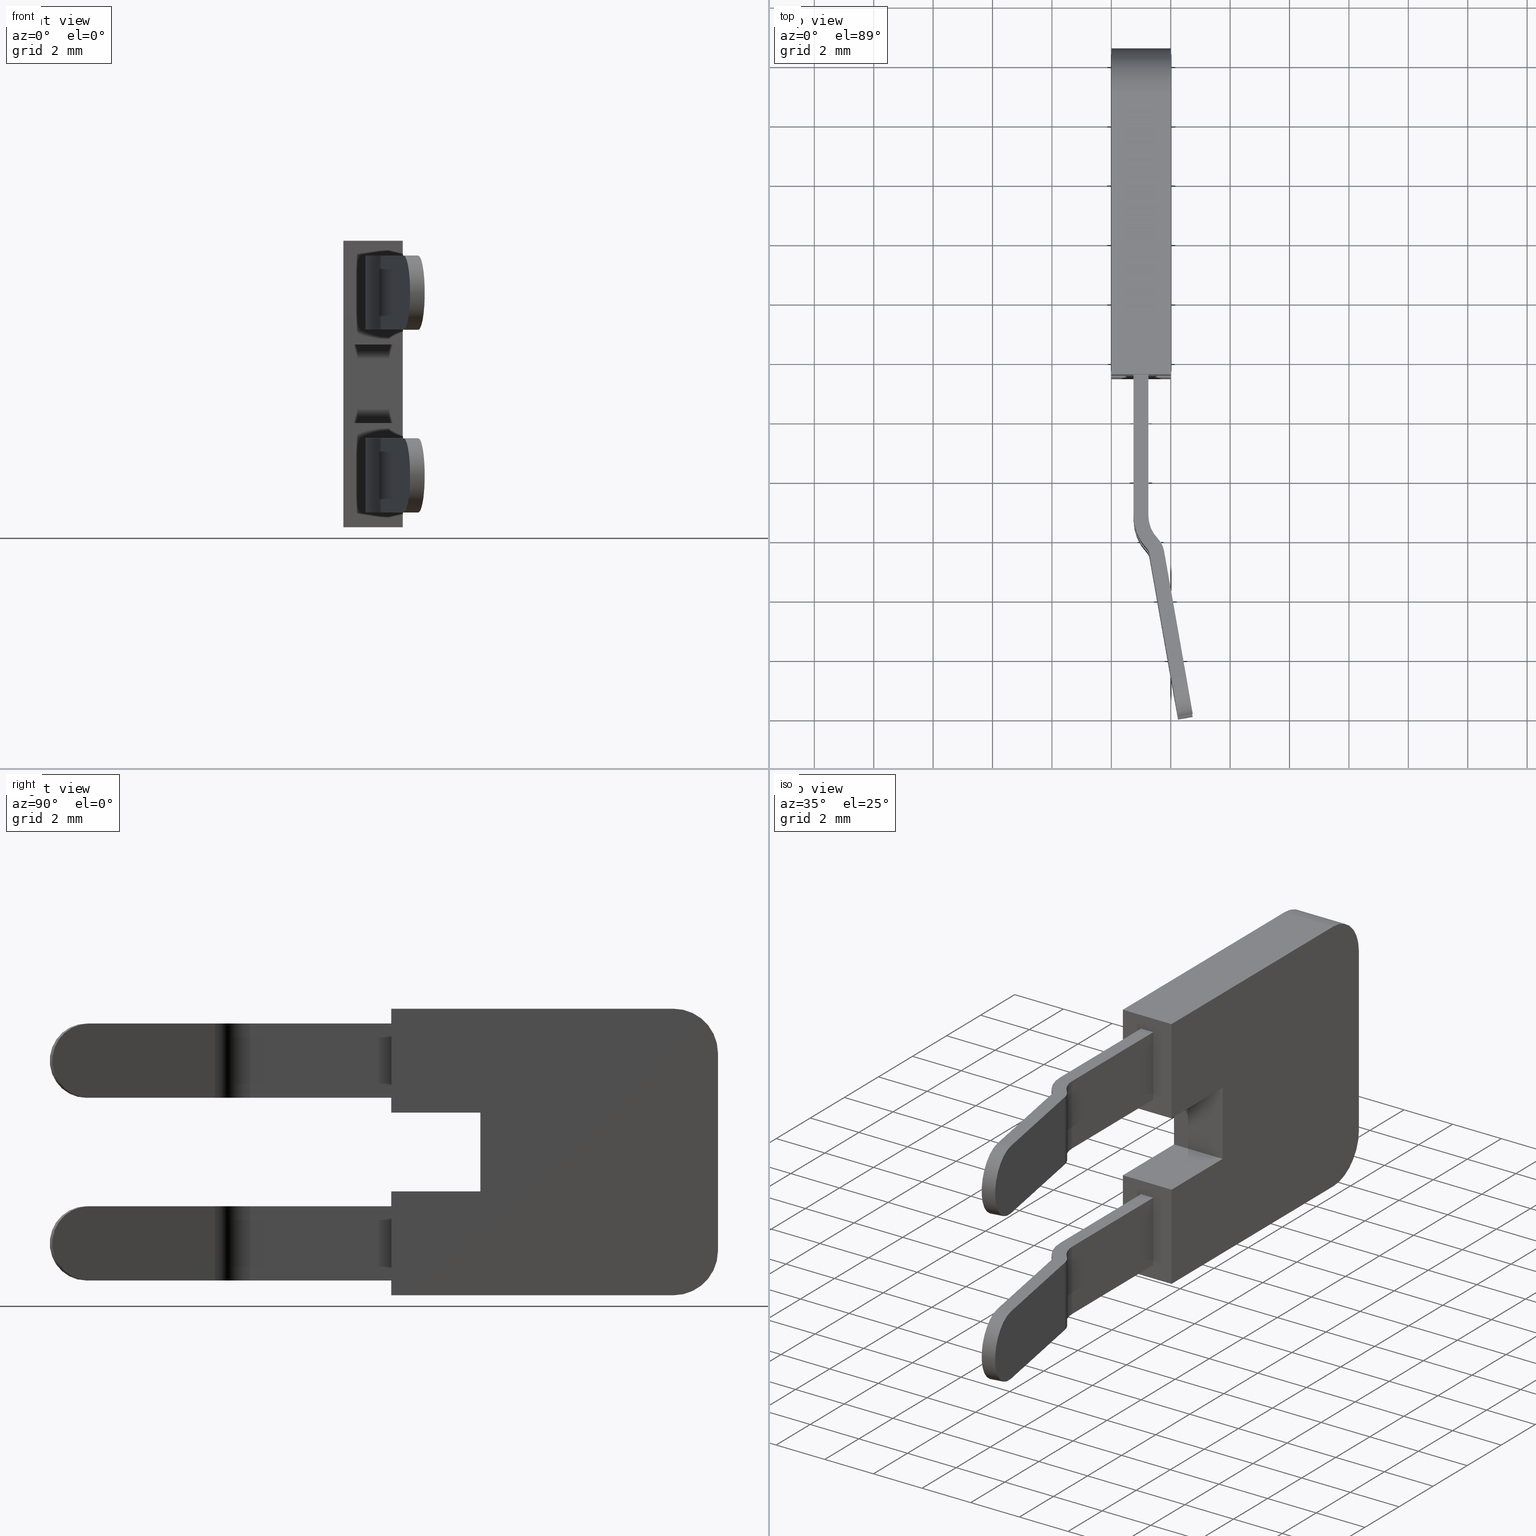
[diagram: canonical four-view strip — front | top / right | iso, engineering-drawing reading convention]
A machine part, canonical four-view strip (front | top / right | iso — engineering-drawing reading convention). The complete STEP part file that produces these views, byte-faithful:
ISO-10303-21;
HEADER;
FILE_DESCRIPTION(('Creo Elements/Direct Modeling STEP Export'),'2;1');
FILE_NAME(
'D:/temp/JobSpoolerServerData/JobServer Files/edad0318-56d8-4a79-a94b-a9
2465a45d54/work/output/model.stp','2018-02-09T11:10:31',(''),(''),
'Creo Elements/Direct Modeling STEP processor for AP214 (Solid Model)',
'Creo Elements/Direct Modeling 18.1I  14-Aug-2016 (C) Parametric Technol
ogy GmbH','');
FILE_SCHEMA(('AUTOMOTIVE_DESIGN { 1 0 10303 214 1 1 1 1 }'));
ENDSEC;
DATA;
#10=CARTESIAN_POINT('',(-23.1051720133759,-9.04580621180248,0.75));
#20=DIRECTION('',(1.,0.,0.));
#30=DIRECTION('',(0.,-1.,0.));
#40=AXIS2_PLACEMENT_3D('',#10,#20,#30);
#50=PLANE('',#40);
#60=CARTESIAN_POINT('',(-23.1051720133759,0.,0.75));
#70=DIRECTION('',(0.,1.,0.));
#80=VECTOR('',#70,1.);
#90=LINE('',#60,#80);
#100=CARTESIAN_POINT('',(-23.1051720133759,-9.04580621180248,0.75));
#110=VERTEX_POINT('',#100);
#120=CARTESIAN_POINT('',(-23.1051720133759,-6.04580621180248,0.75));
#130=VERTEX_POINT('',#120);
#140=EDGE_CURVE('',#110,#130,#90,.T.);
#150=ORIENTED_EDGE('',*,*,#140,.F.);
#160=CARTESIAN_POINT('',(-23.1051720133759,-6.04580621180248,0.75));
#170=DIRECTION('',(0.,0.,-1.));
#180=VECTOR('',#170,1.);
#190=LINE('',#160,#180);
#200=CARTESIAN_POINT('',(-23.1051720133759,-6.04580621180248,-1.25));
#210=VERTEX_POINT('',#200);
#220=EDGE_CURVE('',#130,#210,#190,.T.);
#230=ORIENTED_EDGE('',*,*,#220,.F.);
#240=CARTESIAN_POINT('',(-23.1051720133759,0.,-1.25));
#250=DIRECTION('',(0.,1.,0.));
#260=VECTOR('',#250,1.);
#270=LINE('',#240,#260);
#280=CARTESIAN_POINT('',(-23.1051720133759,-9.04580621180248,-1.25));
#290=VERTEX_POINT('',#280);
#300=EDGE_CURVE('',#290,#210,#270,.T.);
#310=ORIENTED_EDGE('',*,*,#300,.T.);
#320=CARTESIAN_POINT('',(-23.1051720133759,-9.04580621180248,0.75));
#330=DIRECTION('',(0.,0.,1.));
#340=VECTOR('',#330,1.);
#350=LINE('',#320,#340);
#360=EDGE_CURVE('',#290,#110,#350,.T.);
#370=ORIENTED_EDGE('',*,*,#360,.F.);
#380=EDGE_LOOP('',(#370,#310,#230,#150));
#390=FACE_OUTER_BOUND('',#380,.T.);
#400=ADVANCED_FACE('',(#390),#50,.T.);
#410=COLOUR_RGB('',0.560784339904785,0.588235318660736,0.600000023841858
);
#420=FILL_AREA_STYLE_COLOUR('',#410);
#430=FILL_AREA_STYLE('',(#420));
#440=SURFACE_STYLE_FILL_AREA(#430);
#450=SURFACE_SIDE_STYLE('',(#440));
#460=SURFACE_STYLE_USAGE(.BOTH.,#450);
#470=PRESENTATION_STYLE_ASSIGNMENT((#460));
#480=CARTESIAN_POINT('',(-25.1051720133759,0.454193788197522,0.75));
#490=DIRECTION('',(0.,0.,1.));
#500=DIRECTION('',(1.,0.,0.));
#510=AXIS2_PLACEMENT_3D('',#480,#490,#500);
#520=CYLINDRICAL_SURFACE('',#510,1.5);
#530=CARTESIAN_POINT('',(-25.1051720133759,0.454193788197522,0.75));
#540=DIRECTION('',(0.,0.,1.));
#550=DIRECTION('',(1.,0.,0.));
#560=AXIS2_PLACEMENT_3D('',#530,#540,#550);
#570=CIRCLE('',#560,1.5);
#580=CARTESIAN_POINT('',(-25.1051720133759,1.95419378819752,0.75));
#590=VERTEX_POINT('',#580);
#600=CARTESIAN_POINT('',(-26.6051720133759,0.454193788197522,0.75));
#610=VERTEX_POINT('',#600);
#620=EDGE_CURVE('',#590,#610,#570,.T.);
#630=ORIENTED_EDGE('',*,*,#620,.F.);
#640=CARTESIAN_POINT('',(-26.6051720133759,0.454193788197522,-1.250003))
;
#650=DIRECTION('',(0.,0.,1.));
#660=VECTOR('',#650,1.);
#670=LINE('',#640,#660);
#680=CARTESIAN_POINT('',(-26.6051720133759,0.454193788197522,-1.25));
#690=VERTEX_POINT('',#680);
#700=EDGE_CURVE('',#690,#610,#670,.T.);
#710=ORIENTED_EDGE('',*,*,#700,.T.);
#720=CARTESIAN_POINT('',(-25.1051720133759,0.454193788197522,-1.25));
#730=DIRECTION('',(0.,0.,1.));
#740=DIRECTION('',(1.,0.,0.));
#750=AXIS2_PLACEMENT_3D('',#720,#730,#740);
#760=CIRCLE('',#750,1.5);
#770=CARTESIAN_POINT('',(-25.1051720133759,1.95419378819752,-1.25));
#780=VERTEX_POINT('',#770);
#790=EDGE_CURVE('',#780,#690,#760,.T.);
#800=ORIENTED_EDGE('',*,*,#790,.T.);
#810=CARTESIAN_POINT('',(-25.1051720133759,1.95419378819752,-1.250003));
#820=DIRECTION('',(0.,0.,1.));
#830=VECTOR('',#820,1.);
#840=LINE('',#810,#830);
#850=EDGE_CURVE('',#780,#590,#840,.T.);
#860=ORIENTED_EDGE('',*,*,#850,.F.);
#870=EDGE_LOOP('',(#860,#800,#710,#630));
#880=FACE_OUTER_BOUND('',#870,.T.);
#890=ADVANCED_FACE('',(#880),#520,.T.);
#900=COLOUR_RGB('',0.560784339904785,0.588235318660736,0.600000023841858
);
#910=FILL_AREA_STYLE_COLOUR('',#900);
#920=FILL_AREA_STYLE('',(#910));
#930=SURFACE_STYLE_FILL_AREA(#920);
#940=SURFACE_SIDE_STYLE('',(#930));
#950=SURFACE_STYLE_USAGE(.BOTH.,#940);
#960=PRESENTATION_STYLE_ASSIGNMENT((#950));
#970=CARTESIAN_POINT('',(-20.4551720133759,-5.731938,0.75));
#980=DIRECTION('',(-1.,0.,0.));
#990=DIRECTION('',(0.,1.,0.));
#1000=AXIS2_PLACEMENT_3D('',#970,#980,#990);
#1010=PLANE('',#1000);
#1020=CARTESIAN_POINT('',(-20.4551720133759,0.,-1.25));
#1030=DIRECTION('',(0.,-1.,0.));
#1040=VECTOR('',#1030,1.);
#1050=LINE('',#1020,#1040);
#1060=CARTESIAN_POINT('',(-20.4551720133759,-6.04580621180248,-1.25));
#1070=VERTEX_POINT('',#1060);
#1080=CARTESIAN_POINT('',(-20.4551720133759,-9.04580621180248,-1.25));
#1090=VERTEX_POINT('',#1080);
#1100=EDGE_CURVE('',#1070,#1090,#1050,.T.);
#1110=ORIENTED_EDGE('',*,*,#1100,.T.);
#1120=CARTESIAN_POINT('',(-20.4551720133759,-6.04580621180248,0.75));
#1130=DIRECTION('',(0.,0.,-1.));
#1140=VECTOR('',#1130,1.);
#1150=LINE('',#1120,#1140);
#1160=CARTESIAN_POINT('',(-20.4551720133759,-6.04580621180248,0.75));
#1170=VERTEX_POINT('',#1160);
#1180=EDGE_CURVE('',#1170,#1070,#1150,.T.);
#1190=ORIENTED_EDGE('',*,*,#1180,.T.);
#1200=CARTESIAN_POINT('',(-20.4551720133759,0.,0.75));
#1210=DIRECTION('',(0.,-1.,0.));
#1220=VECTOR('',#1210,1.);
#1230=LINE('',#1200,#1220);
#1240=CARTESIAN_POINT('',(-20.4551720133759,-9.04580621180248,0.75));
#1250=VERTEX_POINT('',#1240);
#1260=EDGE_CURVE('',#1170,#1250,#1230,.T.);
#1270=ORIENTED_EDGE('',*,*,#1260,.F.);
#1280=CARTESIAN_POINT('',(-20.4551720133759,-9.04580621180248,0.75));
#1290=DIRECTION('',(0.,0.,1.));
#1300=VECTOR('',#1290,1.);
#1310=LINE('',#1280,#1300);
#1320=EDGE_CURVE('',#1090,#1250,#1310,.T.);
#1330=ORIENTED_EDGE('',*,*,#1320,.T.);
#1340=EDGE_LOOP('',(#1330,#1270,#1190,#1110));
#1350=FACE_OUTER_BOUND('',#1340,.T.);
#1360=ADVANCED_FACE('',(#1350),#1010,.T.);
#1370=COLOUR_RGB('',0.560784339904785,0.588235318660736,
0.600000023841858);
#1380=FILL_AREA_STYLE_COLOUR('',#1370);
#1390=FILL_AREA_STYLE('',(#1380));
#1400=SURFACE_STYLE_FILL_AREA(#1390);
#1410=SURFACE_SIDE_STYLE('',(#1400));
#1420=SURFACE_STYLE_USAGE(.BOTH.,#1410);
#1430=PRESENTATION_STYLE_ASSIGNMENT((#1420));
#1440=CARTESIAN_POINT('',(-17.706342,-5.636856,0.75));
#1450=DIRECTION('',(0.,0.,1.));
#1460=DIRECTION('',(1.,0.,0.));
#1470=AXIS2_PLACEMENT_3D('',#1440,#1450,#1460);
#1480=PLANE('',#1470);
#1490=CARTESIAN_POINT('',(-18.4551720133759,0.454193788197522,0.75));
#1500=DIRECTION('',(0.,0.,-1.));
#1510=DIRECTION('',(-1.,0.,0.));
#1520=AXIS2_PLACEMENT_3D('',#1490,#1500,#1510);
#1530=CIRCLE('',#1520,1.5);
#1540=CARTESIAN_POINT('',(-18.4551720133759,1.95419378819752,0.75));
#1550=VERTEX_POINT('',#1540);
#1560=CARTESIAN_POINT('',(-16.9551720133759,0.454193788197522,0.75));
#1570=VERTEX_POINT('',#1560);
#1580=EDGE_CURVE('',#1550,#1570,#1530,.T.);
#1590=ORIENTED_EDGE('',*,*,#1580,.F.);
#1600=CARTESIAN_POINT('',(-16.9551720133759,0.,0.75));
#1610=DIRECTION('',(0.,1.,0.));
#1620=VECTOR('',#1610,1.);
#1630=LINE('',#1600,#1620);
#1640=CARTESIAN_POINT('',(-16.9551720133759,-9.04580621180248,0.75));
#1650=VERTEX_POINT('',#1640);
#1660=EDGE_CURVE('',#1650,#1570,#1630,.T.);
#1670=ORIENTED_EDGE('',*,*,#1660,.T.);
#1680=CARTESIAN_POINT('',(0.,-9.04580621180248,0.75));
#1690=DIRECTION('',(1.,0.,0.));
#1700=VECTOR('',#1690,1.);
#1710=LINE('',#1680,#1700);
#1720=EDGE_CURVE('',#1250,#1650,#1710,.T.);
#1730=ORIENTED_EDGE('',*,*,#1720,.T.);
#1740=ORIENTED_EDGE('',*,*,#1260,.T.);
#1750=CARTESIAN_POINT('',(0.,-6.04580621180248,0.75));
#1760=DIRECTION('',(1.,0.,0.));
#1770=VECTOR('',#1760,1.);
#1780=LINE('',#1750,#1770);
#1790=EDGE_CURVE('',#130,#1170,#1780,.T.);
#1800=ORIENTED_EDGE('',*,*,#1790,.T.);
#1810=ORIENTED_EDGE('',*,*,#140,.T.);
#1820=CARTESIAN_POINT('',(0.,-9.04580621180248,0.75));
#1830=DIRECTION('',(1.,0.,0.));
#1840=VECTOR('',#1830,1.);
#1850=LINE('',#1820,#1840);
#1860=CARTESIAN_POINT('',(-26.6051720133759,-9.04580621180248,0.75));
#1870=VERTEX_POINT('',#1860);
#1880=EDGE_CURVE('',#1870,#110,#1850,.T.);
#1890=ORIENTED_EDGE('',*,*,#1880,.T.);
#1900=CARTESIAN_POINT('',(-26.6051720133759,0.,0.75));
#1910=DIRECTION('',(0.,-1.,0.));
#1920=VECTOR('',#1910,1.);
#1930=LINE('',#1900,#1920);
#1940=EDGE_CURVE('',#610,#1870,#1930,.T.);
#1950=ORIENTED_EDGE('',*,*,#1940,.T.);
#1960=ORIENTED_EDGE('',*,*,#620,.T.);
#1970=CARTESIAN_POINT('',(0.,1.95419378819752,0.75));
#1980=DIRECTION('',(-1.,0.,0.));
#1990=VECTOR('',#1980,1.);
#2000=LINE('',#1970,#1990);
#2010=EDGE_CURVE('',#1550,#590,#2000,.T.);
#2020=ORIENTED_EDGE('',*,*,#2010,.T.);
#2030=EDGE_LOOP('',(#2020,#1960,#1950,#1890,#1810,#1800,#1740,#1730,
#1670,#1590));
#2040=FACE_OUTER_BOUND('',#2030,.T.);
#2050=ADVANCED_FACE('',(#2040),#1480,.T.);
#2060=COLOUR_RGB('',0.560784339904785,0.588235318660736,
0.600000023841858);
#2070=FILL_AREA_STYLE_COLOUR('',#2060);
#2080=FILL_AREA_STYLE('',(#2070));
#2090=SURFACE_STYLE_FILL_AREA(#2080);
#2100=SURFACE_SIDE_STYLE('',(#2090));
#2110=SURFACE_STYLE_USAGE(.BOTH.,#2100);
#2120=PRESENTATION_STYLE_ASSIGNMENT((#2110));
#2130=CARTESIAN_POINT('',(-26.6051720133759,-5.624565,0.75));
#2140=DIRECTION('',(-1.,0.,0.));
#2150=DIRECTION('',(0.,1.,0.));
#2160=AXIS2_PLACEMENT_3D('',#2130,#2140,#2150);
#2170=PLANE('',#2160);
#2180=CARTESIAN_POINT('',(-26.6051720133759,0.,-1.25));
#2190=DIRECTION('',(0.,-1.,0.));
#2200=VECTOR('',#2190,1.);
#2210=LINE('',#2180,#2200);
#2220=CARTESIAN_POINT('',(-26.6051720133759,-9.04580621180248,-1.25));
#2230=VERTEX_POINT('',#2220);
#2240=EDGE_CURVE('',#690,#2230,#2210,.T.);
#2250=ORIENTED_EDGE('',*,*,#2240,.T.);
#2260=ORIENTED_EDGE('',*,*,#700,.F.);
#2270=ORIENTED_EDGE('',*,*,#1940,.F.);
#2280=CARTESIAN_POINT('',(-26.6051720133759,-9.04580621180248,0.75));
#2290=DIRECTION('',(0.,0.,1.));
#2300=VECTOR('',#2290,1.);
#2310=LINE('',#2280,#2300);
#2320=EDGE_CURVE('',#2230,#1870,#2310,.T.);
#2330=ORIENTED_EDGE('',*,*,#2320,.T.);
#2340=EDGE_LOOP('',(#2330,#2270,#2260,#2250));
#2350=FACE_OUTER_BOUND('',#2340,.T.);
#2360=ADVANCED_FACE('',(#2350),#2170,.T.);
#2370=COLOUR_RGB('',0.560784339904785,0.588235318660736,
0.600000023841858);
#2380=FILL_AREA_STYLE_COLOUR('',#2370);
#2390=FILL_AREA_STYLE('',(#2380));
#2400=SURFACE_STYLE_FILL_AREA(#2390);
#2410=SURFACE_SIDE_STYLE('',(#2400));
#2420=SURFACE_STYLE_USAGE(.BOTH.,#2410);
#2430=PRESENTATION_STYLE_ASSIGNMENT((#2420));
#2440=CARTESIAN_POINT('',(-17.706342,-5.636856,-1.25));
#2450=DIRECTION('',(0.,0.,1.));
#2460=DIRECTION('',(1.,0.,0.));
#2470=AXIS2_PLACEMENT_3D('',#2440,#2450,#2460);
#2480=PLANE('',#2470);
#2490=ORIENTED_EDGE('',*,*,#790,.F.);
#2500=ORIENTED_EDGE('',*,*,#2240,.F.);
#2510=CARTESIAN_POINT('',(0.,-9.04580621180248,-1.25));
#2520=DIRECTION('',(1.,0.,0.));
#2530=VECTOR('',#2520,1.);
#2540=LINE('',#2510,#2530);
#2550=EDGE_CURVE('',#2230,#290,#2540,.T.);
#2560=ORIENTED_EDGE('',*,*,#2550,.F.);
#2570=ORIENTED_EDGE('',*,*,#300,.F.);
#2580=CARTESIAN_POINT('',(0.,-6.04580621180248,-1.25));
#2590=DIRECTION('',(1.,0.,0.));
#2600=VECTOR('',#2590,1.);
#2610=LINE('',#2580,#2600);
#2620=EDGE_CURVE('',#210,#1070,#2610,.T.);
#2630=ORIENTED_EDGE('',*,*,#2620,.F.);
#2640=ORIENTED_EDGE('',*,*,#1100,.F.);
#2650=CARTESIAN_POINT('',(0.,-9.04580621180248,-1.25));
#2660=DIRECTION('',(1.,0.,0.));
#2670=VECTOR('',#2660,1.);
#2680=LINE('',#2650,#2670);
#2690=CARTESIAN_POINT('',(-16.9551720133759,-9.04580621180248,-1.25));
#2700=VERTEX_POINT('',#2690);
#2710=EDGE_CURVE('',#1090,#2700,#2680,.T.);
#2720=ORIENTED_EDGE('',*,*,#2710,.F.);
#2730=CARTESIAN_POINT('',(-16.9551720133759,0.,-1.25));
#2740=DIRECTION('',(0.,1.,0.));
#2750=VECTOR('',#2740,1.);
#2760=LINE('',#2730,#2750);
#2770=CARTESIAN_POINT('',(-16.9551720133759,0.454193788197522,-1.25));
#2780=VERTEX_POINT('',#2770);
#2790=EDGE_CURVE('',#2700,#2780,#2760,.T.);
#2800=ORIENTED_EDGE('',*,*,#2790,.F.);
#2810=CARTESIAN_POINT('',(-18.4551720133759,0.454193788197522,-1.25));
#2820=DIRECTION('',(0.,0.,-1.));
#2830=DIRECTION('',(-1.,0.,0.));
#2840=AXIS2_PLACEMENT_3D('',#2810,#2820,#2830);
#2850=CIRCLE('',#2840,1.5);
#2860=CARTESIAN_POINT('',(-18.4551720133759,1.95419378819752,-1.25));
#2870=VERTEX_POINT('',#2860);
#2880=EDGE_CURVE('',#2870,#2780,#2850,.T.);
#2890=ORIENTED_EDGE('',*,*,#2880,.T.);
#2900=CARTESIAN_POINT('',(0.,1.95419378819752,-1.25));
#2910=DIRECTION('',(-1.,0.,0.));
#2920=VECTOR('',#2910,1.);
#2930=LINE('',#2900,#2920);
#2940=EDGE_CURVE('',#2870,#780,#2930,.T.);
#2950=ORIENTED_EDGE('',*,*,#2940,.F.);
#2960=EDGE_LOOP('',(#2950,#2890,#2800,#2720,#2640,#2630,#2570,#2560,
#2500,#2490));
#2970=FACE_OUTER_BOUND('',#2960,.T.);
#2980=ADVANCED_FACE('',(#2970),#2480,.F.);
#2990=COLOUR_RGB('',0.560784339904785,0.588235318660736,
0.600000023841858);
#3000=FILL_AREA_STYLE_COLOUR('',#2990);
#3010=FILL_AREA_STYLE('',(#3000));
#3020=SURFACE_STYLE_FILL_AREA(#3010);
#3030=SURFACE_SIDE_STYLE('',(#3020));
#3040=SURFACE_STYLE_USAGE(.BOTH.,#3030);
#3050=PRESENTATION_STYLE_ASSIGNMENT((#3040));
#3060=CARTESIAN_POINT('',(-22.2002080330205,-6.04580621180248,
-0.101898314923549));
#3070=DIRECTION('',(0.,-1.,0.));
#3080=DIRECTION('',(1.,0.,0.));
#3090=AXIS2_PLACEMENT_3D('',#3060,#3070,#3080);
#3100=PLANE('',#3090);
#3110=ORIENTED_EDGE('',*,*,#2620,.T.);
#3120=ORIENTED_EDGE('',*,*,#220,.T.);
#3130=ORIENTED_EDGE('',*,*,#1790,.F.);
#3140=ORIENTED_EDGE('',*,*,#1180,.F.);
#3150=EDGE_LOOP('',(#3140,#3130,#3120,#3110));
#3160=FACE_OUTER_BOUND('',#3150,.T.);
#3170=ADVANCED_FACE('',(#3160),#3100,.T.);
#3180=COLOUR_RGB('',0.560784339904785,0.588235318660736,
0.600000023841858);
#3190=FILL_AREA_STYLE_COLOUR('',#3180);
#3200=FILL_AREA_STYLE('',(#3190));
#3210=SURFACE_STYLE_FILL_AREA(#3200);
#3220=SURFACE_SIDE_STYLE('',(#3210));
#3230=SURFACE_STYLE_USAGE(.BOTH.,#3220);
#3240=PRESENTATION_STYLE_ASSIGNMENT((#3230));
#3250=CARTESIAN_POINT('',(-16.9551720133759,-9.04580621180248,0.75));
#3260=DIRECTION('',(1.,0.,0.));
#3270=DIRECTION('',(0.,-1.,0.));
#3280=AXIS2_PLACEMENT_3D('',#3250,#3260,#3270);
#3290=PLANE('',#3280);
#3300=CARTESIAN_POINT('',(-16.9551720133759,-9.04580621180248,0.75));
#3310=DIRECTION('',(0.,0.,1.));
#3320=VECTOR('',#3310,1.);
#3330=LINE('',#3300,#3320);
#3340=EDGE_CURVE('',#2700,#1650,#3330,.T.);
#3350=ORIENTED_EDGE('',*,*,#3340,.F.);
#3360=ORIENTED_EDGE('',*,*,#1660,.F.);
#3370=CARTESIAN_POINT('',(-16.9551720133759,0.454193788197522,0.750003))
;
#3380=DIRECTION('',(0.,0.,-1.));
#3390=VECTOR('',#3380,1.);
#3400=LINE('',#3370,#3390);
#3410=EDGE_CURVE('',#1570,#2780,#3400,.T.);
#3420=ORIENTED_EDGE('',*,*,#3410,.F.);
#3430=ORIENTED_EDGE('',*,*,#2790,.T.);
#3440=EDGE_LOOP('',(#3430,#3420,#3360,#3350));
#3450=FACE_OUTER_BOUND('',#3440,.T.);
#3460=ADVANCED_FACE('',(#3450),#3290,.T.);
#3470=COLOUR_RGB('',0.560784339904785,0.588235318660736,
0.600000023841858);
#3480=FILL_AREA_STYLE_COLOUR('',#3470);
#3490=FILL_AREA_STYLE('',(#3480));
#3500=SURFACE_STYLE_FILL_AREA(#3490);
#3510=SURFACE_SIDE_STYLE('',(#3500));
#3520=SURFACE_STYLE_USAGE(.BOTH.,#3510);
#3530=PRESENTATION_STYLE_ASSIGNMENT((#3520));
#3540=CARTESIAN_POINT('',(-26.6051720133759,-9.04580621180248,0.75));
#3550=DIRECTION('',(-0.,-1.,-0.));
#3560=DIRECTION('',(-1.,0.,0.));
#3570=AXIS2_PLACEMENT_3D('',#3540,#3550,#3560);
#3580=PLANE('',#3570);
#3590=ORIENTED_EDGE('',*,*,#1880,.F.);
#3600=ORIENTED_EDGE('',*,*,#360,.T.);
#3610=ORIENTED_EDGE('',*,*,#2550,.T.);
#3620=ORIENTED_EDGE('',*,*,#2320,.F.);
#3630=EDGE_LOOP('',(#3620,#3610,#3600,#3590));
#3640=FACE_OUTER_BOUND('',#3630,.T.);
#3650=CARTESIAN_POINT('',(0.,-9.04580621180248,-0.502166000000009));
#3660=DIRECTION('',(1.,0.,-6.03872056969976E-44));
#3670=VECTOR('',#3660,1.);
#3680=LINE('',#3650,#3670);
#3690=CARTESIAN_POINT('',(-26.1051720133737,-9.04580621180248,
-0.502166000000009));
#3700=VERTEX_POINT('',#3690);
#3710=CARTESIAN_POINT('',(-23.6051720133737,-9.04580621180248,
-0.502166000000009));
#3720=VERTEX_POINT('',#3710);
#3730=EDGE_CURVE('',#3700,#3720,#3680,.T.);
#3740=ORIENTED_EDGE('',*,*,#3730,.F.);
#3750=CARTESIAN_POINT('',(-23.6051720133737,-9.04580621180248,0.75));
#3760=DIRECTION('',(0.,0.,-1.));
#3770=VECTOR('',#3760,1.);
#3780=LINE('',#3750,#3770);
#3790=CARTESIAN_POINT('',(-23.6051720133737,-9.04580621180248,
-0.00216599999981659));
#3800=VERTEX_POINT('',#3790);
#3810=EDGE_CURVE('',#3800,#3720,#3780,.T.);
#3820=ORIENTED_EDGE('',*,*,#3810,.T.);
#3830=CARTESIAN_POINT('',(0.,-9.04580621180248,-0.00216599999981659));
#3840=DIRECTION('',(1.,0.,-2.46600550871962E-28));
#3850=VECTOR('',#3840,1.);
#3860=LINE('',#3830,#3850);
#3870=CARTESIAN_POINT('',(-26.1051720133737,-9.04580621180248,
-0.00216599999981659));
#3880=VERTEX_POINT('',#3870);
#3890=EDGE_CURVE('',#3880,#3800,#3860,.T.);
#3900=ORIENTED_EDGE('',*,*,#3890,.T.);
#3910=CARTESIAN_POINT('',(-26.1051720133737,-9.04580621180248,0.75));
#3920=DIRECTION('',(0.,0.,-1.));
#3930=VECTOR('',#3920,1.);
#3940=LINE('',#3910,#3930);
#3950=EDGE_CURVE('',#3880,#3700,#3940,.T.);
#3960=ORIENTED_EDGE('',*,*,#3950,.F.);
#3970=EDGE_LOOP('',(#3960,#3900,#3820,#3740));
#3980=FACE_BOUND('',#3970,.T.);
#3990=ADVANCED_FACE('',(#3640,#3980),#3580,.T.);
#4000=COLOUR_RGB('',0.560784339904785,0.588235318660736,
0.600000023841858);
#4010=FILL_AREA_STYLE_COLOUR('',#4000);
#4020=FILL_AREA_STYLE('',(#4010));
#4030=SURFACE_STYLE_FILL_AREA(#4020);
#4040=SURFACE_SIDE_STYLE('',(#4030));
#4050=SURFACE_STYLE_USAGE(.BOTH.,#4040);
#4060=PRESENTATION_STYLE_ASSIGNMENT((#4050));
#4070=CARTESIAN_POINT('',(-16.1926720133752,1.95419378819752,0.75));
#4080=DIRECTION('',(-0.,1.,0.));
#4090=DIRECTION('',(1.,0.,0.));
#4100=AXIS2_PLACEMENT_3D('',#4070,#4080,#4090);
#4110=PLANE('',#4100);
#4120=ORIENTED_EDGE('',*,*,#2010,.F.);
#4130=ORIENTED_EDGE('',*,*,#850,.T.);
#4140=ORIENTED_EDGE('',*,*,#2940,.T.);
#4150=CARTESIAN_POINT('',(-18.4551720133759,1.95419378819752,0.750003));
#4160=DIRECTION('',(0.,0.,-1.));
#4170=VECTOR('',#4160,1.);
#4180=LINE('',#4150,#4170);
#4190=EDGE_CURVE('',#1550,#2870,#4180,.T.);
#4200=ORIENTED_EDGE('',*,*,#4190,.T.);
#4210=EDGE_LOOP('',(#4200,#4140,#4130,#4120));
#4220=FACE_OUTER_BOUND('',#4210,.T.);
#4230=ADVANCED_FACE('',(#4220),#4110,.T.);
#4240=COLOUR_RGB('',0.560784339904785,0.588235318660736,
0.600000023841858);
#4250=FILL_AREA_STYLE_COLOUR('',#4240);
#4260=FILL_AREA_STYLE('',(#4250));
#4270=SURFACE_STYLE_FILL_AREA(#4260);
#4280=SURFACE_SIDE_STYLE('',(#4270));
#4290=SURFACE_STYLE_USAGE(.BOTH.,#4280);
#4300=PRESENTATION_STYLE_ASSIGNMENT((#4290));
#4310=CARTESIAN_POINT('',(-18.4551720133759,0.454193788197522,0.75));
#4320=DIRECTION('',(0.,0.,-1.));
#4330=DIRECTION('',(-1.,0.,0.));
#4340=AXIS2_PLACEMENT_3D('',#4310,#4320,#4330);
#4350=CYLINDRICAL_SURFACE('',#4340,1.5);
#4360=ORIENTED_EDGE('',*,*,#1580,.T.);
#4370=ORIENTED_EDGE('',*,*,#4190,.F.);
#4380=ORIENTED_EDGE('',*,*,#2880,.F.);
#4390=ORIENTED_EDGE('',*,*,#3410,.T.);
#4400=EDGE_LOOP('',(#4390,#4380,#4370,#4360));
#4410=FACE_OUTER_BOUND('',#4400,.T.);
#4420=ADVANCED_FACE('',(#4410),#4350,.T.);
#4430=COLOUR_RGB('',0.560784339904785,0.588235318660736,
0.600000023841858);
#4440=FILL_AREA_STYLE_COLOUR('',#4430);
#4450=FILL_AREA_STYLE('',(#4440));
#4460=SURFACE_STYLE_FILL_AREA(#4450);
#4470=SURFACE_SIDE_STYLE('',(#4460));
#4480=SURFACE_STYLE_USAGE(.BOTH.,#4470);
#4490=PRESENTATION_STYLE_ASSIGNMENT((#4480));
#4500=CARTESIAN_POINT('',(-19.9551720133743,-12.6848747224411,
-0.502166000000009));
#4510=DIRECTION('',(-6.03872056969976E-44,9.75830775290989E-57,-1.));
#4520=DIRECTION('',(1.61595616824427E-13,1.,0.));
#4530=AXIS2_PLACEMENT_3D('',#4500,#4510,#4520);
#4540=PLANE('',#4530);
#4550=CARTESIAN_POINT('',(-26.1051720133723,-0.0954075198330621,
-0.502166000000009));
#4560=DIRECTION('',(-1.614E-13,-1.,0.));
#4570=VECTOR('',#4560,1.);
#4580=LINE('',#4550,#4570);
#4590=CARTESIAN_POINT('',(-26.1051720133745,-13.7958062118023,
-0.502165999999828));
#4600=VERTEX_POINT('',#4590);
#4610=EDGE_CURVE('',#3700,#4600,#4580,.T.);
#4620=ORIENTED_EDGE('',*,*,#4610,.F.);
#4630=CARTESIAN_POINT('',(-26.1051720133745,-13.7958062118023,
-0.502166000000009));
#4640=DIRECTION('',(1.,-1.61595616824427E-13,-6.03872056969976E-44));
#4650=VECTOR('',#4640,1.);
#4660=LINE('',#4630,#4650);
#4670=CARTESIAN_POINT('',(-23.6051720133745,-13.7958062118027,
-0.502165999999828));
#4680=VERTEX_POINT('',#4670);
#4690=EDGE_CURVE('',#4600,#4680,#4660,.T.);
#4700=ORIENTED_EDGE('',*,*,#4690,.F.);
#4710=CARTESIAN_POINT('',(-23.6051720133723,-0.0954075198334656,
-0.502166000000009));
#4720=DIRECTION('',(-1.614E-13,-1.,0.));
#4730=VECTOR('',#4720,1.);
#4740=LINE('',#4710,#4730);
#4750=EDGE_CURVE('',#3720,#4680,#4740,.T.);
#4760=ORIENTED_EDGE('',*,*,#4750,.T.);
#4770=ORIENTED_EDGE('',*,*,#3730,.T.);
#4780=EDGE_LOOP('',(#4770,#4760,#4700,#4620));
#4790=FACE_OUTER_BOUND('',#4780,.T.);
#4800=ADVANCED_FACE('',(#4790),#4540,.T.);
#4810=COLOUR_RGB('',0.823529481887817,0.823529481887817,
0.784313797950745);
#4820=FILL_AREA_STYLE_COLOUR('',#4810);
#4830=FILL_AREA_STYLE('',(#4820));
#4840=SURFACE_STYLE_FILL_AREA(#4830);
#4850=SURFACE_SIDE_STYLE('',(#4840));
#4860=SURFACE_STYLE_USAGE(.BOTH.,#4850);
#4870=PRESENTATION_STYLE_ASSIGNMENT((#4860));
#4880=CARTESIAN_POINT('',(-16.3363130267448,-0.095407519834638,
-0.00216599999983025));
#4890=DIRECTION('',(-2.46600550871962E-28,-1.52788445397746E-15,-1.));
#4900=DIRECTION('',(-1.614E-13,-1.,1.52788445397746E-15));
#4910=AXIS2_PLACEMENT_3D('',#4880,#4890,#4900);
#4920=PLANE('',#4910);
#4930=CARTESIAN_POINT('',(-23.6051720133723,-0.0954075198334648,
-0.00216599999983025));
#4940=DIRECTION('',(-1.614E-13,-1.,1.52788445397746E-15));
#4950=VECTOR('',#4940,1.);
#4960=LINE('',#4930,#4950);
#4970=CARTESIAN_POINT('',(-23.6051720133745,-13.7958062118027,
-0.00216599999980926));
#4980=VERTEX_POINT('',#4970);
#4990=EDGE_CURVE('',#3800,#4980,#4960,.T.);
#5000=ORIENTED_EDGE('',*,*,#4990,.F.);
#5010=CARTESIAN_POINT('',(-26.1051720133745,-13.7958062118023,
-0.00216599999982836));
#5020=DIRECTION('',(1.,-1.61595616824427E-13,-6.03872056969976E-44));
#5030=VECTOR('',#5020,1.);
#5040=LINE('',#5010,#5030);
#5050=CARTESIAN_POINT('',(-26.1051720133745,-13.7958062118023,
-0.00216599999980926));
#5060=VERTEX_POINT('',#5050);
#5070=EDGE_CURVE('',#5060,#4980,#5040,.T.);
#5080=ORIENTED_EDGE('',*,*,#5070,.T.);
#5090=CARTESIAN_POINT('',(-26.1051720133723,-0.0954075198330613,
-0.00216599999983025));
#5100=DIRECTION('',(-1.614E-13,-1.,1.52788445397746E-15));
#5110=VECTOR('',#5100,1.);
#5120=LINE('',#5090,#5110);
#5130=EDGE_CURVE('',#3880,#5060,#5120,.T.);
#5140=ORIENTED_EDGE('',*,*,#5130,.T.);
#5150=ORIENTED_EDGE('',*,*,#3890,.F.);
#5160=EDGE_LOOP('',(#5150,#5140,#5080,#5000));
#5170=FACE_OUTER_BOUND('',#5160,.T.);
#5180=ADVANCED_FACE('',(#5170),#4920,.F.);
#5190=COLOUR_RGB('',0.823529481887817,0.823529481887817,
0.784313797950745);
#5200=FILL_AREA_STYLE_COLOUR('',#5190);
#5210=FILL_AREA_STYLE('',(#5200));
#5220=SURFACE_STYLE_FILL_AREA(#5210);
#5230=SURFACE_SIDE_STYLE('',(#5220));
#5240=SURFACE_STYLE_USAGE(.BOTH.,#5230);
#5250=PRESENTATION_STYLE_ASSIGNMENT((#5240));
#5260=CARTESIAN_POINT('',(-19.9551720133745,-13.7958062118033,
1.09783400000017));
#5270=DIRECTION('',(-1.,1.61595616824427E-13,6.03872056969976E-44));
#5280=DIRECTION('',(1.61595616824427E-13,1.,0.));
#5290=AXIS2_PLACEMENT_3D('',#5260,#5270,#5280);
#5300=CYLINDRICAL_SURFACE('',#5290,1.6);
#5310=CARTESIAN_POINT('',(-17.4551720133745,-13.7958062118037,
1.09783400000017));
#5320=DIRECTION('',(-1.,1.61595616824427E-13,6.03872056969976E-44));
#5330=DIRECTION('',(1.61595616824427E-13,1.,0.));
#5340=AXIS2_PLACEMENT_3D('',#5310,#5320,#5330);
#5350=CIRCLE('',#5340,1.6);
#5360=CARTESIAN_POINT('',(-17.4551720133745,-13.7958062118037,
-0.502165999999828));
#5370=VERTEX_POINT('',#5360);
#5380=CARTESIAN_POINT('',(-17.4551720133747,-14.9121793539276,
-0.0483383289034451));
#5390=VERTEX_POINT('',#5380);
#5400=EDGE_CURVE('',#5370,#5390,#5350,.T.);
#5410=ORIENTED_EDGE('',*,*,#5400,.T.);
#5420=CARTESIAN_POINT('',(-19.9551720133745,-13.7958062118033,
-0.502166000000009));
#5430=DIRECTION('',(1.,-1.61595616824427E-13,-6.03872056969976E-44));
#5440=VECTOR('',#5430,1.);
#5450=LINE('',#5420,#5440);
#5460=CARTESIAN_POINT('',(-19.9551720133745,-13.7958062118033,
-0.502165999999828));
#5470=VERTEX_POINT('',#5460);
#5480=EDGE_CURVE('',#5470,#5370,#5450,.T.);
#5490=ORIENTED_EDGE('',*,*,#5480,.T.);
#5500=CARTESIAN_POINT('',(-19.9551720133745,-13.7958062118033,
1.09783400000017));
#5510=DIRECTION('',(-1.,1.61595616824427E-13,6.03872056969976E-44));
#5520=DIRECTION('',(1.61595616824427E-13,1.,0.));
#5530=AXIS2_PLACEMENT_3D('',#5500,#5510,#5520);
#5540=CIRCLE('',#5530,1.6);
#5550=CARTESIAN_POINT('',(-19.9551720133747,-14.9121793539272,
-0.0483383289034449));
#5560=VERTEX_POINT('',#5550);
#5570=EDGE_CURVE('',#5470,#5560,#5540,.T.);
#5580=ORIENTED_EDGE('',*,*,#5570,.F.);
#5590=CARTESIAN_POINT('',(-19.9551720133747,-14.9121793539272,
-0.0483383289034446));
#5600=DIRECTION('',(-1.,1.61595616824427E-13,6.03872056969976E-44));
#5610=VECTOR('',#5600,1.);
#5620=LINE('',#5590,#5610);
#5630=EDGE_CURVE('',#5390,#5560,#5620,.T.);
#5640=ORIENTED_EDGE('',*,*,#5630,.T.);
#5650=EDGE_LOOP('',(#5640,#5580,#5490,#5410));
#5660=FACE_OUTER_BOUND('',#5650,.T.);
#5670=ADVANCED_FACE('',(#5660),#5300,.T.);
#5680=COLOUR_RGB('',0.823529481887817,0.823529481887817,
0.784313797950745);
#5690=FILL_AREA_STYLE_COLOUR('',#5680);
#5700=FILL_AREA_STYLE('',(#5690));
#5710=SURFACE_STYLE_FILL_AREA(#5700);
#5720=SURFACE_SIDE_STYLE('',(#5710));
#5730=SURFACE_STYLE_USAGE(.BOTH.,#5720);
#5740=PRESENTATION_STYLE_ASSIGNMENT((#5730));
#5750=CARTESIAN_POINT('',(-17.4551720133739,-10.2073014814436,
-0.28926743812002));
#5760=DIRECTION('',(-1.,1.614E-13,0.));
#5770=DIRECTION('',(2.604996E-26,1.614E-13,1.));
#5780=AXIS2_PLACEMENT_3D('',#5750,#5760,#5770);
#5790=PLANE('',#5780);
#5800=CARTESIAN_POINT('',(-17.4551720133723,-0.0954075198344582,
-0.502166000000009));
#5810=DIRECTION('',(-1.614E-13,-1.,0.));
#5820=VECTOR('',#5810,1.);
#5830=LINE('',#5800,#5820);
#5840=CARTESIAN_POINT('',(-17.4551720133737,-9.04580621180248,
-0.502166000000009));
#5850=VERTEX_POINT('',#5840);
#5860=EDGE_CURVE('',#5850,#5370,#5830,.T.);
#5870=ORIENTED_EDGE('',*,*,#5860,.F.);
#5880=ORIENTED_EDGE('',*,*,#5400,.F.);
#5890=CARTESIAN_POINT('',(-17.4551720133747,-15.1214993180759,
-0.263245640572873));
#5900=DIRECTION('',(-1.,1.61595616824427E-13,6.03872056969976E-44));
#5910=DIRECTION('',(-1.61595616824427E-13,-1.,1.52788445397746E-15));
#5920=AXIS2_PLACEMENT_3D('',#5890,#5900,#5910);
#5930=CIRCLE('',#5920,0.3);
#5940=CARTESIAN_POINT('',(-17.4551720133747,-15.0694048647758,
0.0321966853307897));
#5950=VERTEX_POINT('',#5940);
#5960=EDGE_CURVE('',#5950,#5390,#5930,.T.);
#5970=ORIENTED_EDGE('',*,*,#5960,.T.);
#5980=CARTESIAN_POINT('',(-17.4551720133723,-0.0954075198344614,
-2.60812305563928));
#5990=DIRECTION('',(-1.5894797133617E-13,-0.984807753012208,
0.17364817766693));
#6000=VECTOR('',#5990,1.);
#6010=LINE('',#5980,#6000);
#6020=CARTESIAN_POINT('',(-17.4551720133754,-19.3147965205384,
0.780773777916329));
#6030=VERTEX_POINT('',#6020);
#6040=EDGE_CURVE('',#5950,#6030,#6010,.T.);
#6050=ORIENTED_EDGE('',*,*,#6040,.F.);
#6060=CARTESIAN_POINT('',(-17.4551720133754,-19.5410134180092,
-0.5021659999998));
#6070=DIRECTION('',(2.80607843805259E-14,0.173648177666934,
0.984807753012208));
#6080=VECTOR('',#6070,1.);
#6090=LINE('',#6060,#6080);
#6100=CARTESIAN_POINT('',(-17.4551720133754,-19.227972431705,
1.27317765442243));
#6110=VERTEX_POINT('',#6100);
#6120=EDGE_CURVE('',#6030,#6110,#6090,.T.);
#6130=ORIENTED_EDGE('',*,*,#6120,.F.);
#6140=CARTESIAN_POINT('',(-17.4551720133723,-0.0954075198344606,
-2.10040974969641));
#6150=DIRECTION('',(1.5894797133617E-13,0.984807753012208,
-0.17364817766693));
#6160=VECTOR('',#6150,1.);
#6170=LINE('',#6140,#6160);
#6180=CARTESIAN_POINT('',(-17.4551720133747,-14.9825807759423,
0.524600561836894));
#6190=VERTEX_POINT('',#6180);
#6200=EDGE_CURVE('',#6110,#6190,#6170,.T.);
#6210=ORIENTED_EDGE('',*,*,#6200,.F.);
#6220=CARTESIAN_POINT('',(-17.4551720133747,-15.1214993180759,
-0.263245640572872));
#6230=DIRECTION('',(-1.,1.61595616824427E-13,6.03872056969976E-44));
#6240=DIRECTION('',(1.61595616824427E-13,1.,0.));
#6250=AXIS2_PLACEMENT_3D('',#6220,#6230,#6240);
#6260=CIRCLE('',#6250,0.8);
#6270=CARTESIAN_POINT('',(-17.4551720133746,-14.5633127470139,
0.309840523878936));
#6280=VERTEX_POINT('',#6270);
#6290=EDGE_CURVE('',#6190,#6280,#6260,.T.);
#6300=ORIENTED_EDGE('',*,*,#6290,.F.);
#6310=CARTESIAN_POINT('',(-17.4551720133745,-13.7958062118037,
1.09783400000017));
#6320=DIRECTION('',(-1.,1.61595616824427E-13,6.03872056969976E-44));
#6330=DIRECTION('',(1.61595616824427E-13,1.,0.));
#6340=AXIS2_PLACEMENT_3D('',#6310,#6320,#6330);
#6350=CIRCLE('',#6340,1.1);
#6360=CARTESIAN_POINT('',(-17.4551720133745,-13.7958062118037,
-0.00216599999982836));
#6370=VERTEX_POINT('',#6360);
#6380=EDGE_CURVE('',#6370,#6280,#6350,.T.);
#6390=ORIENTED_EDGE('',*,*,#6380,.T.);
#6400=CARTESIAN_POINT('',(-17.4551720133723,-0.0954075198344574,
-0.00216599999983025));
#6410=DIRECTION('',(-1.614E-13,-1.,1.52788445397746E-15));
#6420=VECTOR('',#6410,1.);
#6430=LINE('',#6400,#6420);
#6440=CARTESIAN_POINT('',(-17.4551720133737,-9.04580621180248,
-0.00216599999981659));
#6450=VERTEX_POINT('',#6440);
#6460=EDGE_CURVE('',#6450,#6370,#6430,.T.);
#6470=ORIENTED_EDGE('',*,*,#6460,.T.);
#6480=CARTESIAN_POINT('',(-17.4551720133737,-9.04580621180248,0.75));
#6490=DIRECTION('',(0.,0.,1.));
#6500=VECTOR('',#6490,1.);
#6510=LINE('',#6480,#6500);
#6520=EDGE_CURVE('',#5850,#6450,#6510,.T.);
#6530=ORIENTED_EDGE('',*,*,#6520,.T.);
#6540=EDGE_LOOP('',(#6530,#6470,#6390,#6300,#6210,#6130,#6050,#5970,
#5880,#5870));
#6550=FACE_OUTER_BOUND('',#6540,.T.);
#6560=ADVANCED_FACE('',(#6550),#5790,.F.);
#6570=COLOUR_RGB('',0.823529481887817,0.823529481887817,
0.784313797950745);
#6580=FILL_AREA_STYLE_COLOUR('',#6570);
#6590=FILL_AREA_STYLE('',(#6580));
#6600=SURFACE_STYLE_FILL_AREA(#6590);
#6610=SURFACE_SIDE_STYLE('',(#6600));
#6620=SURFACE_STYLE_USAGE(.BOTH.,#6610);
#6630=PRESENTATION_STYLE_ASSIGNMENT((#6620));
#6640=CARTESIAN_POINT('',(-20.4551720133759,-9.04580621180248,0.75));
#6650=DIRECTION('',(-0.,-1.,-0.));
#6660=DIRECTION('',(-1.,0.,0.));
#6670=AXIS2_PLACEMENT_3D('',#6640,#6650,#6660);
#6680=PLANE('',#6670);
#6690=ORIENTED_EDGE('',*,*,#6520,.F.);
#6700=CARTESIAN_POINT('',(0.,-9.04580621180248,-0.00216599999981659));
#6710=DIRECTION('',(1.,0.,-2.46600550871962E-28));
#6720=VECTOR('',#6710,1.);
#6730=LINE('',#6700,#6720);
#6740=CARTESIAN_POINT('',(-19.9551720133737,-9.04580621180248,
-0.00216599999981659));
#6750=VERTEX_POINT('',#6740);
#6760=EDGE_CURVE('',#6750,#6450,#6730,.T.);
#6770=ORIENTED_EDGE('',*,*,#6760,.T.);
#6780=CARTESIAN_POINT('',(-19.9551720133737,-9.04580621180248,0.75));
#6790=DIRECTION('',(0.,0.,-1.));
#6800=VECTOR('',#6790,1.);
#6810=LINE('',#6780,#6800);
#6820=CARTESIAN_POINT('',(-19.9551720133737,-9.04580621180248,
-0.502166000000009));
#6830=VERTEX_POINT('',#6820);
#6840=EDGE_CURVE('',#6750,#6830,#6810,.T.);
#6850=ORIENTED_EDGE('',*,*,#6840,.F.);
#6860=CARTESIAN_POINT('',(0.,-9.04580621180248,-0.502166000000009));
#6870=DIRECTION('',(-1.,0.,6.03872056969976E-44));
#6880=VECTOR('',#6870,1.);
#6890=LINE('',#6860,#6880);
#6900=EDGE_CURVE('',#5850,#6830,#6890,.T.);
#6910=ORIENTED_EDGE('',*,*,#6900,.T.);
#6920=EDGE_LOOP('',(#6910,#6850,#6770,#6690));
#6930=FACE_BOUND('',#6920,.T.);
#6940=ORIENTED_EDGE('',*,*,#1320,.F.);
#6950=ORIENTED_EDGE('',*,*,#1720,.F.);
#6960=ORIENTED_EDGE('',*,*,#3340,.T.);
#6970=ORIENTED_EDGE('',*,*,#2710,.T.);
#6980=EDGE_LOOP('',(#6970,#6960,#6950,#6940));
#6990=FACE_OUTER_BOUND('',#6980,.T.);
#7000=ADVANCED_FACE('',(#6930,#6990),#6680,.T.);
#7010=COLOUR_RGB('',0.560784339904785,0.588235318660736,
0.600000023841858);
#7020=FILL_AREA_STYLE_COLOUR('',#7010);
#7030=FILL_AREA_STYLE('',(#7020));
#7040=SURFACE_STYLE_FILL_AREA(#7030);
#7050=SURFACE_SIDE_STYLE('',(#7040));
#7060=SURFACE_STYLE_USAGE(.BOTH.,#7050);
#7070=PRESENTATION_STYLE_ASSIGNMENT((#7060));
#7080=CARTESIAN_POINT('',(-26.1051720133747,-15.2115123412631,
0.0572540675961479));
#7090=DIRECTION('',(-2.80607843805253E-14,-0.17364817766693,
-0.984807753012208));
#7100=DIRECTION('',(1.59140616301486E-13,0.984807753012208,
-0.17364817766693));
#7110=AXIS2_PLACEMENT_3D('',#7080,#7090,#7100);
#7120=PLANE('',#7110);
#7130=CARTESIAN_POINT('',(-26.1051720133747,-15.0694048647744,
0.0321966853307898));
#7140=DIRECTION('',(-1.,1.61595616824427E-13,6.03872056969976E-44));
#7150=VECTOR('',#7140,1.);
#7160=LINE('',#7130,#7150);
#7170=CARTESIAN_POINT('',(-23.6051720133747,-15.0694048647748,
0.0321966853307898));
#7180=VERTEX_POINT('',#7170);
#7190=CARTESIAN_POINT('',(-26.1051720133747,-15.0694048647744,
0.0321966853307898));
#7200=VERTEX_POINT('',#7190);
#7210=EDGE_CURVE('',#7180,#7200,#7160,.T.);
#7220=ORIENTED_EDGE('',*,*,#7210,.F.);
#7230=CARTESIAN_POINT('',(-26.1051720133723,-0.0954075198330653,
-2.60812305563928));
#7240=DIRECTION('',(1.5894797133617E-13,0.984807753012208,
-0.17364817766693));
#7250=VECTOR('',#7240,1.);
#7260=LINE('',#7230,#7250);
#7270=CARTESIAN_POINT('',(-26.1051720133754,-19.314796520537,
0.780773777916329));
#7280=VERTEX_POINT('',#7270);
#7290=EDGE_CURVE('',#7280,#7200,#7260,.T.);
#7300=ORIENTED_EDGE('',*,*,#7290,.T.);
#7310=CARTESIAN_POINT('',(-24.8551720133754,-19.3147965205372,
0.780773777916329));
#7320=DIRECTION('',(2.80607843805259E-14,0.173648177666934,
0.984807753012208));
#7330=DIRECTION('',(1.5894797133617E-13,0.984807753012208,
-0.173648177666934));
#7340=AXIS2_PLACEMENT_3D('',#7310,#7320,#7330);
#7350=CIRCLE('',#7340,1.25);
#7360=CARTESIAN_POINT('',(-23.6051720133754,-19.3147965205374,
0.780773777916329));
#7370=VERTEX_POINT('',#7360);
#7380=EDGE_CURVE('',#7280,#7370,#7350,.T.);
#7390=ORIENTED_EDGE('',*,*,#7380,.F.);
#7400=CARTESIAN_POINT('',(-23.6051720133723,-0.0954075198334688,
-2.60812305563928));
#7410=DIRECTION('',(1.5894797133617E-13,0.984807753012208,
-0.17364817766693));
#7420=VECTOR('',#7410,1.);
#7430=LINE('',#7400,#7420);
#7440=EDGE_CURVE('',#7370,#7180,#7430,.T.);
#7450=ORIENTED_EDGE('',*,*,#7440,.F.);
#7460=EDGE_LOOP('',(#7450,#7390,#7300,#7220));
#7470=FACE_OUTER_BOUND('',#7460,.T.);
#7480=ADVANCED_FACE('',(#7470),#7120,.T.);
#7490=COLOUR_RGB('',0.823529481887817,0.823529481887817,
0.784313797950745);
#7500=FILL_AREA_STYLE_COLOUR('',#7490);
#7510=FILL_AREA_STYLE('',(#7500));
#7520=SURFACE_STYLE_FILL_AREA(#7510);
#7530=SURFACE_SIDE_STYLE('',(#7520));
#7540=SURFACE_STYLE_USAGE(.BOTH.,#7530);
#7550=PRESENTATION_STYLE_ASSIGNMENT((#7540));
#7560=CARTESIAN_POINT('',(-19.9551720133747,-15.2115123412641,
0.0572540675961479));
#7570=DIRECTION('',(-2.80607843805253E-14,-0.17364817766693,
-0.984807753012208));
#7580=DIRECTION('',(1.59140616301486E-13,0.984807753012208,
-0.17364817766693));
#7590=AXIS2_PLACEMENT_3D('',#7560,#7570,#7580);
#7600=PLANE('',#7590);
#7610=CARTESIAN_POINT('',(-19.9551720133747,-15.0694048647754,
0.0321966853307898));
#7620=DIRECTION('',(-1.,1.61595616824427E-13,6.03872056969976E-44));
#7630=VECTOR('',#7620,1.);
#7640=LINE('',#7610,#7630);
#7650=CARTESIAN_POINT('',(-19.9551720133747,-15.0694048647754,
0.0321966853307898));
#7660=VERTEX_POINT('',#7650);
#7670=EDGE_CURVE('',#5950,#7660,#7640,.T.);
#7680=ORIENTED_EDGE('',*,*,#7670,.F.);
#7690=CARTESIAN_POINT('',(-19.9551720133723,-0.0954075198340579,
-2.60812305563928));
#7700=DIRECTION('',(-1.5894797133617E-13,-0.984807753012208,
0.17364817766693));
#7710=VECTOR('',#7700,1.);
#7720=LINE('',#7690,#7710);
#7730=CARTESIAN_POINT('',(-19.9551720133754,-19.314796520538,
0.780773777916329));
#7740=VERTEX_POINT('',#7730);
#7750=EDGE_CURVE('',#7660,#7740,#7720,.T.);
#7760=ORIENTED_EDGE('',*,*,#7750,.F.);
#7770=CARTESIAN_POINT('',(-18.7051720133754,-19.3147965205382,
0.780773777916329));
#7780=DIRECTION('',(2.80607843805259E-14,0.173648177666934,
0.984807753012208));
#7790=DIRECTION('',(1.5894797133617E-13,0.984807753012208,
-0.173648177666934));
#7800=AXIS2_PLACEMENT_3D('',#7770,#7780,#7790);
#7810=CIRCLE('',#7800,1.25);
#7820=EDGE_CURVE('',#7740,#6030,#7810,.T.);
#7830=ORIENTED_EDGE('',*,*,#7820,.F.);
#7840=ORIENTED_EDGE('',*,*,#6040,.T.);
#7850=EDGE_LOOP('',(#7840,#7830,#7760,#7680));
#7860=FACE_OUTER_BOUND('',#7850,.T.);
#7870=ADVANCED_FACE('',(#7860),#7600,.T.);
#7880=COLOUR_RGB('',0.823529481887817,0.823529481887817,
0.784313797950745);
#7890=FILL_AREA_STYLE_COLOUR('',#7880);
#7900=FILL_AREA_STYLE('',(#7890));
#7910=SURFACE_STYLE_FILL_AREA(#7900);
#7920=SURFACE_SIDE_STYLE('',(#7910));
#7930=SURFACE_STYLE_USAGE(.BOTH.,#7920);
#7940=PRESENTATION_STYLE_ASSIGNMENT((#7930));
#7950=CARTESIAN_POINT('',(-26.1051720133747,-15.1214993180745,
-0.263245640572873));
#7960=DIRECTION('',(-1.,1.61595616824427E-13,6.03872056969976E-44));
#7970=DIRECTION('',(-1.61595616824427E-13,-1.,1.52788445397746E-15));
#7980=AXIS2_PLACEMENT_3D('',#7950,#7960,#7970);
#7990=CYLINDRICAL_SURFACE('',#7980,0.3);
#8000=CARTESIAN_POINT('',(-26.1051720133747,-15.1214993180745,
-0.263245640572873));
#8010=DIRECTION('',(-1.,1.61595616824427E-13,6.03872056969976E-44));
#8020=DIRECTION('',(-1.61595616824427E-13,-1.,1.52788445397746E-15));
#8030=AXIS2_PLACEMENT_3D('',#8000,#8010,#8020);
#8040=CIRCLE('',#8030,0.3);
#8050=CARTESIAN_POINT('',(-26.1051720133747,-14.9121793539262,
-0.0483383289034451));
#8060=VERTEX_POINT('',#8050);
#8070=EDGE_CURVE('',#7200,#8060,#8040,.T.);
#8080=ORIENTED_EDGE('',*,*,#8070,.T.);
#8090=ORIENTED_EDGE('',*,*,#7210,.T.);
#8100=CARTESIAN_POINT('',(-23.6051720133747,-15.1214993180749,
-0.263245640572873));
#8110=DIRECTION('',(-1.,1.61595616824427E-13,6.03872056969976E-44));
#8120=DIRECTION('',(-1.61595616824427E-13,-1.,1.52788445397746E-15));
#8130=AXIS2_PLACEMENT_3D('',#8100,#8110,#8120);
#8140=CIRCLE('',#8130,0.3);
#8150=CARTESIAN_POINT('',(-23.6051720133747,-14.9121793539266,
-0.0483383289034451));
#8160=VERTEX_POINT('',#8150);
#8170=EDGE_CURVE('',#7180,#8160,#8140,.T.);
#8180=ORIENTED_EDGE('',*,*,#8170,.F.);
#8190=CARTESIAN_POINT('',(-26.1051720133747,-14.9121793539262,
-0.0483383289034446));
#8200=DIRECTION('',(-1.,1.61595616824427E-13,6.03872056969976E-44));
#8210=VECTOR('',#8200,1.);
#8220=LINE('',#8190,#8210);
#8230=EDGE_CURVE('',#8160,#8060,#8220,.T.);
#8240=ORIENTED_EDGE('',*,*,#8230,.F.);
#8250=EDGE_LOOP('',(#8240,#8180,#8090,#8080));
#8260=FACE_OUTER_BOUND('',#8250,.T.);
#8270=ADVANCED_FACE('',(#8260),#7990,.F.);
#8280=COLOUR_RGB('',0.823529481887817,0.823529481887817,
0.784313797950745);
#8290=FILL_AREA_STYLE_COLOUR('',#8280);
#8300=FILL_AREA_STYLE('',(#8290));
#8310=SURFACE_STYLE_FILL_AREA(#8300);
#8320=SURFACE_SIDE_STYLE('',(#8310));
#8330=SURFACE_STYLE_USAGE(.BOTH.,#8320);
#8340=PRESENTATION_STYLE_ASSIGNMENT((#8330));
#8350=CARTESIAN_POINT('',(-26.1051720133739,-10.2338118942179,
-0.284590419063765));
#8360=DIRECTION('',(-1.,1.614E-13,0.));
#8370=DIRECTION('',(2.604996E-26,1.614E-13,1.));
#8380=AXIS2_PLACEMENT_3D('',#8350,#8360,#8370);
#8390=PLANE('',#8380);
#8400=ORIENTED_EDGE('',*,*,#7290,.F.);
#8410=ORIENTED_EDGE('',*,*,#8070,.F.);
#8420=CARTESIAN_POINT('',(-26.1051720133745,-13.7958062118023,
1.09783400000017));
#8430=DIRECTION('',(-1.,1.61595616824427E-13,6.03872056969976E-44));
#8440=DIRECTION('',(1.61595616824427E-13,1.,0.));
#8450=AXIS2_PLACEMENT_3D('',#8420,#8430,#8440);
#8460=CIRCLE('',#8450,1.6);
#8470=EDGE_CURVE('',#4600,#8060,#8460,.T.);
#8480=ORIENTED_EDGE('',*,*,#8470,.T.);
#8490=ORIENTED_EDGE('',*,*,#4610,.T.);
#8500=ORIENTED_EDGE('',*,*,#3950,.T.);
#8510=ORIENTED_EDGE('',*,*,#5130,.F.);
#8520=CARTESIAN_POINT('',(-26.1051720133745,-13.7958062118023,
1.09783400000017));
#8530=DIRECTION('',(-1.,1.61595616824427E-13,6.03872056969976E-44));
#8540=DIRECTION('',(1.61595616824427E-13,1.,0.));
#8550=AXIS2_PLACEMENT_3D('',#8520,#8530,#8540);
#8560=CIRCLE('',#8550,1.1);
#8570=CARTESIAN_POINT('',(-26.1051720133746,-14.5633127470125,
0.309840523878935));
#8580=VERTEX_POINT('',#8570);
#8590=EDGE_CURVE('',#5060,#8580,#8560,.T.);
#8600=ORIENTED_EDGE('',*,*,#8590,.F.);
#8610=CARTESIAN_POINT('',(-26.1051720133747,-15.1214993180745,
-0.263245640572872));
#8620=DIRECTION('',(-1.,1.61595616824427E-13,6.03872056969976E-44));
#8630=DIRECTION('',(1.61595616824427E-13,1.,0.));
#8640=AXIS2_PLACEMENT_3D('',#8610,#8620,#8630);
#8650=CIRCLE('',#8640,0.8);
#8660=CARTESIAN_POINT('',(-26.1051720133747,-14.9825807759409,
0.524600561836894));
#8670=VERTEX_POINT('',#8660);
#8680=EDGE_CURVE('',#8670,#8580,#8650,.T.);
#8690=ORIENTED_EDGE('',*,*,#8680,.T.);
#8700=CARTESIAN_POINT('',(-26.1051720133723,-0.0954075198330645,
-2.10040974969641));
#8710=DIRECTION('',(1.5894797133617E-13,0.984807753012208,
-0.17364817766693));
#8720=VECTOR('',#8710,1.);
#8730=LINE('',#8700,#8720);
#8740=CARTESIAN_POINT('',(-26.1051720133754,-19.2279724317036,
1.27317765442243));
#8750=VERTEX_POINT('',#8740);
#8760=EDGE_CURVE('',#8750,#8670,#8730,.T.);
#8770=ORIENTED_EDGE('',*,*,#8760,.T.);
#8780=CARTESIAN_POINT('',(-26.1051720133754,-19.5410134180078,
-0.5021659999998));
#8790=DIRECTION('',(2.80607843805259E-14,0.173648177666934,
0.984807753012208));
#8800=VECTOR('',#8790,1.);
#8810=LINE('',#8780,#8800);
#8820=EDGE_CURVE('',#7280,#8750,#8810,.T.);
#8830=ORIENTED_EDGE('',*,*,#8820,.T.);
#8840=EDGE_LOOP('',(#8830,#8770,#8690,#8600,#8510,#8500,#8490,#8480,
#8410,#8400));
#8850=FACE_OUTER_BOUND('',#8840,.T.);
#8860=ADVANCED_FACE('',(#8850),#8390,.T.);
#8870=COLOUR_RGB('',0.823529481887817,0.823529481887817,
0.784313797950745);
#8880=FILL_AREA_STYLE_COLOUR('',#8870);
#8890=FILL_AREA_STYLE('',(#8880));
#8900=SURFACE_STYLE_FILL_AREA(#8890);
#8910=SURFACE_SIDE_STYLE('',(#8900));
#8920=SURFACE_STYLE_USAGE(.BOTH.,#8910);
#8930=PRESENTATION_STYLE_ASSIGNMENT((#8920));
#8940=CARTESIAN_POINT('',(-26.1051720133745,-13.7958062118023,
1.09783400000017));
#8950=DIRECTION('',(-1.,1.61595616824427E-13,6.03872056969976E-44));
#8960=DIRECTION('',(1.61595616824427E-13,1.,0.));
#8970=AXIS2_PLACEMENT_3D('',#8940,#8950,#8960);
#8980=CYLINDRICAL_SURFACE('',#8970,1.1);
#8990=ORIENTED_EDGE('',*,*,#5070,.F.);
#9000=CARTESIAN_POINT('',(-23.6051720133745,-13.7958062118027,
1.09783400000017));
#9010=DIRECTION('',(-1.,1.61595616824427E-13,6.03872056969976E-44));
#9020=DIRECTION('',(1.61595616824427E-13,1.,0.));
#9030=AXIS2_PLACEMENT_3D('',#9000,#9010,#9020);
#9040=CIRCLE('',#9030,1.1);
#9050=CARTESIAN_POINT('',(-23.6051720133746,-14.5633127470129,
0.309840523878935));
#9060=VERTEX_POINT('',#9050);
#9070=EDGE_CURVE('',#4980,#9060,#9040,.T.);
#9080=ORIENTED_EDGE('',*,*,#9070,.F.);
#9090=CARTESIAN_POINT('',(-26.1051720133746,-14.5633127470125,
0.309840523878935));
#9100=DIRECTION('',(1.,-1.61595616824427E-13,-6.03872056969976E-44));
#9110=VECTOR('',#9100,1.);
#9120=LINE('',#9090,#9110);
#9130=EDGE_CURVE('',#8580,#9060,#9120,.T.);
#9140=ORIENTED_EDGE('',*,*,#9130,.T.);
#9150=ORIENTED_EDGE('',*,*,#8590,.T.);
#9160=EDGE_LOOP('',(#9150,#9140,#9080,#8990));
#9170=FACE_OUTER_BOUND('',#9160,.T.);
#9180=ADVANCED_FACE('',(#9170),#8980,.F.);
#9190=COLOUR_RGB('',0.823529481887817,0.823529481887817,
0.784313797950745);
#9200=FILL_AREA_STYLE_COLOUR('',#9190);
#9210=FILL_AREA_STYLE('',(#9200));
#9220=SURFACE_STYLE_FILL_AREA(#9210);
#9230=SURFACE_SIDE_STYLE('',(#9220));
#9240=SURFACE_STYLE_USAGE(.BOTH.,#9230);
#9250=PRESENTATION_STYLE_ASSIGNMENT((#9240));
#9260=CARTESIAN_POINT('',(-19.9551720133743,-12.6848747224411,
-0.502166000000009));
#9270=DIRECTION('',(-6.03872056969976E-44,9.75830775290989E-57,-1.));
#9280=DIRECTION('',(1.61595616824427E-13,1.,0.));
#9290=AXIS2_PLACEMENT_3D('',#9260,#9270,#9280);
#9300=PLANE('',#9290);
#9310=ORIENTED_EDGE('',*,*,#5480,.F.);
#9320=ORIENTED_EDGE('',*,*,#5860,.T.);
#9330=ORIENTED_EDGE('',*,*,#6900,.F.);
#9340=CARTESIAN_POINT('',(-19.9551720133723,-0.0954075198340547,
-0.502166000000009));
#9350=DIRECTION('',(-1.614E-13,-1.,0.));
#9360=VECTOR('',#9350,1.);
#9370=LINE('',#9340,#9360);
#9380=EDGE_CURVE('',#6830,#5470,#9370,.T.);
#9390=ORIENTED_EDGE('',*,*,#9380,.F.);
#9400=EDGE_LOOP('',(#9390,#9330,#9320,#9310));
#9410=FACE_OUTER_BOUND('',#9400,.T.);
#9420=ADVANCED_FACE('',(#9410),#9300,.T.);
#9430=COLOUR_RGB('',0.823529481887817,0.823529481887817,
0.784313797950745);
#9440=FILL_AREA_STYLE_COLOUR('',#9430);
#9450=FILL_AREA_STYLE('',(#9440));
#9460=SURFACE_STYLE_FILL_AREA(#9450);
#9470=SURFACE_SIDE_STYLE('',(#9460));
#9480=SURFACE_STYLE_USAGE(.BOTH.,#9470);
#9490=PRESENTATION_STYLE_ASSIGNMENT((#9480));
#9500=CARTESIAN_POINT('',(-26.1051720133745,-13.7958062118023,
1.09783400000017));
#9510=DIRECTION('',(-1.,1.61595616824427E-13,6.03872056969976E-44));
#9520=DIRECTION('',(1.61595616824427E-13,1.,0.));
#9530=AXIS2_PLACEMENT_3D('',#9500,#9510,#9520);
#9540=CYLINDRICAL_SURFACE('',#9530,1.6);
#9550=CARTESIAN_POINT('',(-23.6051720133745,-13.7958062118027,
1.09783400000017));
#9560=DIRECTION('',(-1.,1.61595616824427E-13,6.03872056969976E-44));
#9570=DIRECTION('',(1.61595616824427E-13,1.,0.));
#9580=AXIS2_PLACEMENT_3D('',#9550,#9560,#9570);
#9590=CIRCLE('',#9580,1.6);
#9600=EDGE_CURVE('',#4680,#8160,#9590,.T.);
#9610=ORIENTED_EDGE('',*,*,#9600,.T.);
#9620=ORIENTED_EDGE('',*,*,#4690,.T.);
#9630=ORIENTED_EDGE('',*,*,#8470,.F.);
#9640=ORIENTED_EDGE('',*,*,#8230,.T.);
#9650=EDGE_LOOP('',(#9640,#9630,#9620,#9610));
#9660=FACE_OUTER_BOUND('',#9650,.T.);
#9670=ADVANCED_FACE('',(#9660),#9540,.T.);
#9680=COLOUR_RGB('',0.823529481887817,0.823529481887817,
0.784313797950745);
#9690=FILL_AREA_STYLE_COLOUR('',#9680);
#9700=FILL_AREA_STYLE('',(#9690));
#9710=SURFACE_STYLE_FILL_AREA(#9700);
#9720=SURFACE_SIDE_STYLE('',(#9710));
#9730=SURFACE_STYLE_USAGE(.BOTH.,#9720);
#9740=PRESENTATION_STYLE_ASSIGNMENT((#9730));
#9750=CARTESIAN_POINT('',(-23.6051720133739,-10.2338118942183,
-0.284590419063765));
#9760=DIRECTION('',(-1.,1.614E-13,0.));
#9770=DIRECTION('',(2.604996E-26,1.614E-13,1.));
#9780=AXIS2_PLACEMENT_3D('',#9750,#9760,#9770);
#9790=PLANE('',#9780);
#9800=CARTESIAN_POINT('',(-23.6051720133754,-19.5410134180082,
-0.5021659999998));
#9810=DIRECTION('',(2.80607843805259E-14,0.173648177666934,
0.984807753012208));
#9820=VECTOR('',#9810,1.);
#9830=LINE('',#9800,#9820);
#9840=CARTESIAN_POINT('',(-23.6051720133754,-19.227972431704,
1.27317765442243));
#9850=VERTEX_POINT('',#9840);
#9860=EDGE_CURVE('',#7370,#9850,#9830,.T.);
#9870=ORIENTED_EDGE('',*,*,#9860,.F.);
#9880=CARTESIAN_POINT('',(-23.6051720133723,-0.095407519833468,
-2.10040974969641));
#9890=DIRECTION('',(1.5894797133617E-13,0.984807753012208,
-0.17364817766693));
#9900=VECTOR('',#9890,1.);
#9910=LINE('',#9880,#9900);
#9920=CARTESIAN_POINT('',(-23.6051720133747,-14.9825807759413,
0.524600561836894));
#9930=VERTEX_POINT('',#9920);
#9940=EDGE_CURVE('',#9850,#9930,#9910,.T.);
#9950=ORIENTED_EDGE('',*,*,#9940,.F.);
#9960=CARTESIAN_POINT('',(-23.6051720133747,-15.1214993180749,
-0.263245640572872));
#9970=DIRECTION('',(-1.,1.61595616824427E-13,6.03872056969976E-44));
#9980=DIRECTION('',(1.61595616824427E-13,1.,0.));
#9990=AXIS2_PLACEMENT_3D('',#9960,#9970,#9980);
#10000=CIRCLE('',#9990,0.8);
#10010=EDGE_CURVE('',#9930,#9060,#10000,.T.);
#10020=ORIENTED_EDGE('',*,*,#10010,.F.);
#10030=ORIENTED_EDGE('',*,*,#9070,.T.);
#10040=ORIENTED_EDGE('',*,*,#4990,.T.);
#10050=ORIENTED_EDGE('',*,*,#3810,.F.);
#10060=ORIENTED_EDGE('',*,*,#4750,.F.);
#10070=ORIENTED_EDGE('',*,*,#9600,.F.);
#10080=ORIENTED_EDGE('',*,*,#8170,.T.);
#10090=ORIENTED_EDGE('',*,*,#7440,.T.);
#10100=EDGE_LOOP('',(#10090,#10080,#10070,#10060,#10050,#10040,#10030,
#10020,#9950,#9870));
#10110=FACE_OUTER_BOUND('',#10100,.T.);
#10120=ADVANCED_FACE('',(#10110),#9790,.F.);
#10130=COLOUR_RGB('',0.823529481887817,0.823529481887817,
0.784313797950745);
#10140=FILL_AREA_STYLE_COLOUR('',#10130);
#10150=FILL_AREA_STYLE('',(#10140));
#10160=SURFACE_STYLE_FILL_AREA(#10150);
#10170=SURFACE_SIDE_STYLE('',(#10160));
#10180=SURFACE_STYLE_USAGE(.BOTH.,#10170);
#10190=PRESENTATION_STYLE_ASSIGNMENT((#10180));
#10200=CARTESIAN_POINT('',(-24.8551720133754,-19.541013418008,
-0.5021659999998));
#10210=DIRECTION('',(2.80607843805259E-14,0.173648177666934,
0.984807753012208));
#10220=DIRECTION('',(1.5894797133617E-13,0.984807753012208,
-0.173648177666934));
#10230=AXIS2_PLACEMENT_3D('',#10200,#10210,#10220);
#10240=CYLINDRICAL_SURFACE('',#10230,1.25);
#10250=CARTESIAN_POINT('',(-24.8551720133754,-19.2279724317038,
1.27317765442243));
#10260=DIRECTION('',(2.80607843805259E-14,0.173648177666934,
0.984807753012208));
#10270=DIRECTION('',(1.5894797133617E-13,0.984807753012208,
-0.173648177666934));
#10280=AXIS2_PLACEMENT_3D('',#10250,#10260,#10270);
#10290=CIRCLE('',#10280,1.25);
#10300=EDGE_CURVE('',#8750,#9850,#10290,.T.);
#10310=ORIENTED_EDGE('',*,*,#10300,.F.);
#10320=ORIENTED_EDGE('',*,*,#9860,.T.);
#10330=ORIENTED_EDGE('',*,*,#7380,.T.);
#10340=ORIENTED_EDGE('',*,*,#8820,.F.);
#10350=EDGE_LOOP('',(#10340,#10330,#10320,#10310));
#10360=FACE_OUTER_BOUND('',#10350,.T.);
#10370=ADVANCED_FACE('',(#10360),#10240,.T.);
#10380=COLOUR_RGB('',0.823529481887817,0.823529481887817,
0.784313797950745);
#10390=FILL_AREA_STYLE_COLOUR('',#10380);
#10400=FILL_AREA_STYLE('',(#10390));
#10410=SURFACE_STYLE_FILL_AREA(#10400);
#10420=SURFACE_SIDE_STYLE('',(#10410));
#10430=SURFACE_STYLE_USAGE(.BOTH.,#10420);
#10440=PRESENTATION_STYLE_ASSIGNMENT((#10430));
#10450=CARTESIAN_POINT('',(-26.1051720133756,-20.4589821229688,
1.4902378765061));
#10460=DIRECTION('',(2.80607843805253E-14,0.17364817766693,
0.984807753012208));
#10470=DIRECTION('',(-1.59140616301486E-13,-0.984807753012208,
0.17364817766693));
#10480=AXIS2_PLACEMENT_3D('',#10450,#10460,#10470);
#10490=PLANE('',#10480);
#10500=CARTESIAN_POINT('',(-26.1051720133747,-14.9825807759409,
0.524600561836894));
#10510=DIRECTION('',(1.,-1.61595616824427E-13,-6.03872056969976E-44));
#10520=VECTOR('',#10510,1.);
#10530=LINE('',#10500,#10520);
#10540=EDGE_CURVE('',#8670,#9930,#10530,.T.);
#10550=ORIENTED_EDGE('',*,*,#10540,.F.);
#10560=ORIENTED_EDGE('',*,*,#9940,.T.);
#10570=ORIENTED_EDGE('',*,*,#10300,.T.);
#10580=ORIENTED_EDGE('',*,*,#8760,.F.);
#10590=EDGE_LOOP('',(#10580,#10570,#10560,#10550));
#10600=FACE_OUTER_BOUND('',#10590,.T.);
#10610=ADVANCED_FACE('',(#10600),#10490,.T.);
#10620=COLOUR_RGB('',0.823529481887817,0.823529481887817,
0.784313797950745);
#10630=FILL_AREA_STYLE_COLOUR('',#10620);
#10640=FILL_AREA_STYLE('',(#10630));
#10650=SURFACE_STYLE_FILL_AREA(#10640);
#10660=SURFACE_SIDE_STYLE('',(#10650));
#10670=SURFACE_STYLE_USAGE(.BOTH.,#10660);
#10680=PRESENTATION_STYLE_ASSIGNMENT((#10670));
#10690=CARTESIAN_POINT('',(-26.1051720133747,-15.1214993180745,
-0.263245640572872));
#10700=DIRECTION('',(-1.,1.61595616824427E-13,6.03872056969976E-44));
#10710=DIRECTION('',(1.61595616824427E-13,1.,0.));
#10720=AXIS2_PLACEMENT_3D('',#10690,#10700,#10710);
#10730=CYLINDRICAL_SURFACE('',#10720,0.8);
#10740=ORIENTED_EDGE('',*,*,#9130,.F.);
#10750=ORIENTED_EDGE('',*,*,#10010,.T.);
#10760=ORIENTED_EDGE('',*,*,#10540,.T.);
#10770=ORIENTED_EDGE('',*,*,#8680,.F.);
#10780=EDGE_LOOP('',(#10770,#10760,#10750,#10740));
#10790=FACE_OUTER_BOUND('',#10780,.T.);
#10800=ADVANCED_FACE('',(#10790),#10730,.T.);
#10810=COLOUR_RGB('',0.823529481887817,0.823529481887817,
0.784313797950745);
#10820=FILL_AREA_STYLE_COLOUR('',#10810);
#10830=FILL_AREA_STYLE('',(#10820));
#10840=SURFACE_STYLE_FILL_AREA(#10830);
#10850=SURFACE_SIDE_STYLE('',(#10840));
#10860=SURFACE_STYLE_USAGE(.BOTH.,#10850);
#10870=PRESENTATION_STYLE_ASSIGNMENT((#10860));
#10880=CARTESIAN_POINT('',(-19.9551720133747,-15.1214993180755,
-0.263245640572873));
#10890=DIRECTION('',(-1.,1.61595616824427E-13,6.03872056969976E-44));
#10900=DIRECTION('',(-1.61595616824427E-13,-1.,1.52788445397746E-15));
#10910=AXIS2_PLACEMENT_3D('',#10880,#10890,#10900);
#10920=CYLINDRICAL_SURFACE('',#10910,0.3);
#10930=CARTESIAN_POINT('',(-19.9551720133747,-15.1214993180755,
-0.263245640572873));
#10940=DIRECTION('',(-1.,1.61595616824427E-13,6.03872056969976E-44));
#10950=DIRECTION('',(-1.61595616824427E-13,-1.,1.52788445397746E-15));
#10960=AXIS2_PLACEMENT_3D('',#10930,#10940,#10950);
#10970=CIRCLE('',#10960,0.3);
#10980=EDGE_CURVE('',#7660,#5560,#10970,.T.);
#10990=ORIENTED_EDGE('',*,*,#10980,.T.);
#11000=ORIENTED_EDGE('',*,*,#7670,.T.);
#11010=ORIENTED_EDGE('',*,*,#5960,.F.);
#11020=ORIENTED_EDGE('',*,*,#5630,.F.);
#11030=EDGE_LOOP('',(#11020,#11010,#11000,#10990));
#11040=FACE_OUTER_BOUND('',#11030,.T.);
#11050=ADVANCED_FACE('',(#11040),#10920,.F.);
#11060=COLOUR_RGB('',0.823529481887817,0.823529481887817,
0.784313797950745);
#11070=FILL_AREA_STYLE_COLOUR('',#11060);
#11080=FILL_AREA_STYLE('',(#11070));
#11090=SURFACE_STYLE_FILL_AREA(#11080);
#11100=SURFACE_SIDE_STYLE('',(#11090));
#11110=SURFACE_STYLE_USAGE(.BOTH.,#11100);
#11120=PRESENTATION_STYLE_ASSIGNMENT((#11110));
#11130=CARTESIAN_POINT('',(-16.3363130267448,-0.095407519834638,
-0.00216599999983025));
#11140=DIRECTION('',(-2.46600550871962E-28,-1.52788445397746E-15,-1.));
#11150=DIRECTION('',(-1.614E-13,-1.,1.52788445397746E-15));
#11160=AXIS2_PLACEMENT_3D('',#11130,#11140,#11150);
#11170=PLANE('',#11160);
#11180=ORIENTED_EDGE('',*,*,#6760,.F.);
#11190=ORIENTED_EDGE('',*,*,#6460,.F.);
#11200=CARTESIAN_POINT('',(-19.9551720133745,-13.7958062118033,
-0.00216599999982836));
#11210=DIRECTION('',(1.,-1.61595616824427E-13,-6.03872056969976E-44));
#11220=VECTOR('',#11210,1.);
#11230=LINE('',#11200,#11220);
#11240=CARTESIAN_POINT('',(-19.9551720133745,-13.7958062118033,
-0.00216599999982836));
#11250=VERTEX_POINT('',#11240);
#11260=EDGE_CURVE('',#11250,#6370,#11230,.T.);
#11270=ORIENTED_EDGE('',*,*,#11260,.T.);
#11280=CARTESIAN_POINT('',(-19.9551720133723,-0.0954075198340539,
-0.00216599999983025));
#11290=DIRECTION('',(-1.614E-13,-1.,1.52788445397746E-15));
#11300=VECTOR('',#11290,1.);
#11310=LINE('',#11280,#11300);
#11320=EDGE_CURVE('',#6750,#11250,#11310,.T.);
#11330=ORIENTED_EDGE('',*,*,#11320,.T.);
#11340=EDGE_LOOP('',(#11330,#11270,#11190,#11180));
#11350=FACE_OUTER_BOUND('',#11340,.T.);
#11360=ADVANCED_FACE('',(#11350),#11170,.F.);
#11370=COLOUR_RGB('',0.823529481887817,0.823529481887817,
0.784313797950745);
#11380=FILL_AREA_STYLE_COLOUR('',#11370);
#11390=FILL_AREA_STYLE('',(#11380));
#11400=SURFACE_STYLE_FILL_AREA(#11390);
#11410=SURFACE_SIDE_STYLE('',(#11400));
#11420=SURFACE_STYLE_USAGE(.BOTH.,#11410);
#11430=PRESENTATION_STYLE_ASSIGNMENT((#11420));
#11440=CARTESIAN_POINT('',(-19.9551720133745,-13.7958062118033,
1.09783400000017));
#11450=DIRECTION('',(-1.,1.61595616824427E-13,6.03872056969976E-44));
#11460=DIRECTION('',(1.61595616824427E-13,1.,0.));
#11470=AXIS2_PLACEMENT_3D('',#11440,#11450,#11460);
#11480=CYLINDRICAL_SURFACE('',#11470,1.1);
#11490=ORIENTED_EDGE('',*,*,#11260,.F.);
#11500=ORIENTED_EDGE('',*,*,#6380,.F.);
#11510=CARTESIAN_POINT('',(-19.9551720133746,-14.5633127470135,
0.309840523878935));
#11520=DIRECTION('',(1.,-1.61595616824427E-13,-6.03872056969976E-44));
#11530=VECTOR('',#11520,1.);
#11540=LINE('',#11510,#11530);
#11550=CARTESIAN_POINT('',(-19.9551720133746,-14.5633127470135,
0.309840523878936));
#11560=VERTEX_POINT('',#11550);
#11570=EDGE_CURVE('',#11560,#6280,#11540,.T.);
#11580=ORIENTED_EDGE('',*,*,#11570,.T.);
#11590=CARTESIAN_POINT('',(-19.9551720133745,-13.7958062118033,
1.09783400000017));
#11600=DIRECTION('',(-1.,1.61595616824427E-13,6.03872056969976E-44));
#11610=DIRECTION('',(1.61595616824427E-13,1.,0.));
#11620=AXIS2_PLACEMENT_3D('',#11590,#11600,#11610);
#11630=CIRCLE('',#11620,1.1);
#11640=EDGE_CURVE('',#11250,#11560,#11630,.T.);
#11650=ORIENTED_EDGE('',*,*,#11640,.T.);
#11660=EDGE_LOOP('',(#11650,#11580,#11500,#11490));
#11670=FACE_OUTER_BOUND('',#11660,.T.);
#11680=ADVANCED_FACE('',(#11670),#11480,.F.);
#11690=COLOUR_RGB('',0.823529481887817,0.823529481887817,
0.784313797950745);
#11700=FILL_AREA_STYLE_COLOUR('',#11690);
#11710=FILL_AREA_STYLE('',(#11700));
#11720=SURFACE_STYLE_FILL_AREA(#11710);
#11730=SURFACE_SIDE_STYLE('',(#11720));
#11740=SURFACE_STYLE_USAGE(.BOTH.,#11730);
#11750=PRESENTATION_STYLE_ASSIGNMENT((#11740));
#11760=CARTESIAN_POINT('',(-19.9551720133747,-15.1214993180755,
-0.263245640572872));
#11770=DIRECTION('',(-1.,1.61595616824427E-13,6.03872056969976E-44));
#11780=DIRECTION('',(1.61595616824427E-13,1.,0.));
#11790=AXIS2_PLACEMENT_3D('',#11760,#11770,#11780);
#11800=CYLINDRICAL_SURFACE('',#11790,0.8);
#11810=ORIENTED_EDGE('',*,*,#11570,.F.);
#11820=ORIENTED_EDGE('',*,*,#6290,.T.);
#11830=CARTESIAN_POINT('',(-19.9551720133747,-14.9825807759419,
0.524600561836894));
#11840=DIRECTION('',(1.,-1.61595616824427E-13,-6.03872056969976E-44));
#11850=VECTOR('',#11840,1.);
#11860=LINE('',#11830,#11850);
#11870=CARTESIAN_POINT('',(-19.9551720133747,-14.9825807759419,
0.524600561836894));
#11880=VERTEX_POINT('',#11870);
#11890=EDGE_CURVE('',#11880,#6190,#11860,.T.);
#11900=ORIENTED_EDGE('',*,*,#11890,.T.);
#11910=CARTESIAN_POINT('',(-19.9551720133747,-15.1214993180755,
-0.263245640572872));
#11920=DIRECTION('',(-1.,1.61595616824427E-13,6.03872056969976E-44));
#11930=DIRECTION('',(1.61595616824427E-13,1.,0.));
#11940=AXIS2_PLACEMENT_3D('',#11910,#11920,#11930);
#11950=CIRCLE('',#11940,0.8);
#11960=EDGE_CURVE('',#11880,#11560,#11950,.T.);
#11970=ORIENTED_EDGE('',*,*,#11960,.F.);
#11980=EDGE_LOOP('',(#11970,#11900,#11820,#11810));
#11990=FACE_OUTER_BOUND('',#11980,.T.);
#12000=ADVANCED_FACE('',(#11990),#11800,.T.);
#12010=COLOUR_RGB('',0.823529481887817,0.823529481887817,
0.784313797950745);
#12020=FILL_AREA_STYLE_COLOUR('',#12010);
#12030=FILL_AREA_STYLE('',(#12020));
#12040=SURFACE_STYLE_FILL_AREA(#12030);
#12050=SURFACE_SIDE_STYLE('',(#12040));
#12060=SURFACE_STYLE_USAGE(.BOTH.,#12050);
#12070=PRESENTATION_STYLE_ASSIGNMENT((#12060));
#12080=CARTESIAN_POINT('',(-18.7051720133754,-19.541013418009,
-0.5021659999998));
#12090=DIRECTION('',(2.80607843805259E-14,0.173648177666934,
0.984807753012208));
#12100=DIRECTION('',(1.5894797133617E-13,0.984807753012208,
-0.173648177666934));
#12110=AXIS2_PLACEMENT_3D('',#12080,#12090,#12100);
#12120=CYLINDRICAL_SURFACE('',#12110,1.25);
#12130=CARTESIAN_POINT('',(-18.7051720133754,-19.2279724317048,
1.27317765442243));
#12140=DIRECTION('',(2.80607843805259E-14,0.173648177666934,
0.984807753012208));
#12150=DIRECTION('',(1.5894797133617E-13,0.984807753012208,
-0.173648177666934));
#12160=AXIS2_PLACEMENT_3D('',#12130,#12140,#12150);
#12170=CIRCLE('',#12160,1.25);
#12180=CARTESIAN_POINT('',(-19.9551720133754,-19.2279724317046,
1.27317765442243));
#12190=VERTEX_POINT('',#12180);
#12200=EDGE_CURVE('',#12190,#6110,#12170,.T.);
#12210=ORIENTED_EDGE('',*,*,#12200,.F.);
#12220=ORIENTED_EDGE('',*,*,#6120,.T.);
#12230=ORIENTED_EDGE('',*,*,#7820,.T.);
#12240=CARTESIAN_POINT('',(-19.9551720133754,-19.5410134180088,
-0.5021659999998));
#12250=DIRECTION('',(2.80607843805259E-14,0.173648177666934,
0.984807753012208));
#12260=VECTOR('',#12250,1.);
#12270=LINE('',#12240,#12260);
#12280=EDGE_CURVE('',#7740,#12190,#12270,.T.);
#12290=ORIENTED_EDGE('',*,*,#12280,.F.);
#12300=EDGE_LOOP('',(#12290,#12230,#12220,#12210));
#12310=FACE_OUTER_BOUND('',#12300,.T.);
#12320=ADVANCED_FACE('',(#12310),#12120,.T.);
#12330=COLOUR_RGB('',0.823529481887817,0.823529481887817,
0.784313797950745);
#12340=FILL_AREA_STYLE_COLOUR('',#12330);
#12350=FILL_AREA_STYLE('',(#12340));
#12360=SURFACE_STYLE_FILL_AREA(#12350);
#12370=SURFACE_SIDE_STYLE('',(#12360));
#12380=SURFACE_STYLE_USAGE(.BOTH.,#12370);
#12390=PRESENTATION_STYLE_ASSIGNMENT((#12380));
#12400=CARTESIAN_POINT('',(-19.9551720133756,-20.4589821229698,
1.4902378765061));
#12410=DIRECTION('',(2.80607843805253E-14,0.17364817766693,
0.984807753012208));
#12420=DIRECTION('',(-1.59140616301486E-13,-0.984807753012208,
0.17364817766693));
#12430=AXIS2_PLACEMENT_3D('',#12400,#12410,#12420);
#12440=PLANE('',#12430);
#12450=ORIENTED_EDGE('',*,*,#11890,.F.);
#12460=ORIENTED_EDGE('',*,*,#6200,.T.);
#12470=ORIENTED_EDGE('',*,*,#12200,.T.);
#12480=CARTESIAN_POINT('',(-19.9551720133723,-0.0954075198340571,
-2.10040974969641));
#12490=DIRECTION('',(1.5894797133617E-13,0.984807753012208,
-0.17364817766693));
#12500=VECTOR('',#12490,1.);
#12510=LINE('',#12480,#12500);
#12520=EDGE_CURVE('',#12190,#11880,#12510,.T.);
#12530=ORIENTED_EDGE('',*,*,#12520,.F.);
#12540=EDGE_LOOP('',(#12530,#12470,#12460,#12450));
#12550=FACE_OUTER_BOUND('',#12540,.T.);
#12560=ADVANCED_FACE('',(#12550),#12440,.T.);
#12570=COLOUR_RGB('',0.823529481887817,0.823529481887817,
0.784313797950745);
#12580=FILL_AREA_STYLE_COLOUR('',#12570);
#12590=FILL_AREA_STYLE('',(#12580));
#12600=SURFACE_STYLE_FILL_AREA(#12590);
#12610=SURFACE_SIDE_STYLE('',(#12600));
#12620=SURFACE_STYLE_USAGE(.BOTH.,#12610);
#12630=PRESENTATION_STYLE_ASSIGNMENT((#12620));
#12640=CARTESIAN_POINT('',(-19.9551720133739,-10.2338118942189,
-0.284590419063765));
#12650=DIRECTION('',(-1.,1.614E-13,0.));
#12660=DIRECTION('',(2.604996E-26,1.614E-13,1.));
#12670=AXIS2_PLACEMENT_3D('',#12640,#12650,#12660);
#12680=PLANE('',#12670);
#12690=ORIENTED_EDGE('',*,*,#7750,.T.);
#12700=ORIENTED_EDGE('',*,*,#10980,.F.);
#12710=ORIENTED_EDGE('',*,*,#5570,.T.);
#12720=ORIENTED_EDGE('',*,*,#9380,.T.);
#12730=ORIENTED_EDGE('',*,*,#6840,.T.);
#12740=ORIENTED_EDGE('',*,*,#11320,.F.);
#12750=ORIENTED_EDGE('',*,*,#11640,.F.);
#12760=ORIENTED_EDGE('',*,*,#11960,.T.);
#12770=ORIENTED_EDGE('',*,*,#12520,.T.);
#12780=ORIENTED_EDGE('',*,*,#12280,.T.);
#12790=EDGE_LOOP('',(#12780,#12770,#12760,#12750,#12740,#12730,#12720,
#12710,#12700,#12690));
#12800=FACE_OUTER_BOUND('',#12790,.T.);
#12810=ADVANCED_FACE('',(#12800),#12680,.T.);
#12820=COLOUR_RGB('',0.823529481887817,0.823529481887817,
0.784313797950745);
#12830=FILL_AREA_STYLE_COLOUR('',#12820);
#12840=FILL_AREA_STYLE('',(#12830));
#12850=SURFACE_STYLE_FILL_AREA(#12840);
#12860=SURFACE_SIDE_STYLE('',(#12850));
#12870=SURFACE_STYLE_USAGE(.BOTH.,#12860);
#12880=PRESENTATION_STYLE_ASSIGNMENT((#12870));
#12890=CLOSED_SHELL('',(#400,#890,#1360,#2050,#2360,#2980,#3170,#3460,
#3990,#4230,#4420,#4800,#5180,#5670,#6560,#7000,#7480,#7870,#8270,#8860,
#9180,#9420,#9670,#10120,#10370,#10610,#10800,#11050,#11360,#11680,
#12000,#12320,#12560,#12810));
#12900=MANIFOLD_SOLID_BREP('',#12890);
#12910=CARTESIAN_POINT('',(0.,0.,0.));
#12920=DIRECTION('',(0.,0.,1.));
#12930=DIRECTION('',(1.,0.,0.));
#12940=AXIS2_PLACEMENT_3D('',#12910,#12920,#12930);
#12950=APPLICATION_CONTEXT(' ');
#12960=APPLICATION_PROTOCOL_DEFINITION(' ','automotive_design',1998,
#12950);
#12970=PRODUCT_CONTEXT('',#12950,'mechanical');
#12980=PRODUCT_DEFINITION_CONTEXT('part definition',#12950,'design');
#12990=PRODUCT('ESB_2-MZDB-select','ESB_2-MZDB-select','',(#12970));
#13000=PRODUCT_RELATED_PRODUCT_CATEGORY('part',' ',(#12990));
#13010=PRODUCT_DEFINITION_FORMATION_WITH_SPECIFIED_SOURCE('','',#12990,
.BOUGHT.);
#13020=PRODUCT_DEFINITION('',' ',#13010,#12980);
#13030=PRODUCT_DEFINITION_SHAPE('','',#13020);
#13040=DIMENSIONAL_EXPONENTS(1.,0.,0.,0.,0.,0.,0.);
#13050=DIMENSIONAL_EXPONENTS(0.,0.,0.,0.,0.,0.,0.);
#13060=DIMENSIONAL_EXPONENTS(0.,0.,0.,0.,0.,0.,0.);
#13070=(LENGTH_UNIT() NAMED_UNIT(*) SI_UNIT(.MILLI.,.METRE.));
#13080=(NAMED_UNIT(*) PLANE_ANGLE_UNIT() SI_UNIT($,.RADIAN.));
#13090=(NAMED_UNIT(*) SI_UNIT($,.STERADIAN.) SOLID_ANGLE_UNIT());
#13100=(GEOMETRIC_REPRESENTATION_CONTEXT(3) 
GLOBAL_UNCERTAINTY_ASSIGNED_CONTEXT((#13110)) 
GLOBAL_UNIT_ASSIGNED_CONTEXT((#13070,#13080,#13090)) 
REPRESENTATION_CONTEXT('',''));
#13110=UNCERTAINTY_MEASURE_WITH_UNIT(LENGTH_MEASURE(1.E-6),#13070,
'distance_accuracy_value','maximum gap value');
#13120=ADVANCED_BREP_SHAPE_REPRESENTATION('',(#12940,#12900),#13100);
#13130=SHAPE_DEFINITION_REPRESENTATION(#13030,#13120);
#13140=COLOUR_RGB('',0.560784339904785,0.588235318660736,
0.600000023841858);
#13150=FILL_AREA_STYLE_COLOUR('',#13140);
#13160=FILL_AREA_STYLE('',(#13150));
#13170=SURFACE_STYLE_FILL_AREA(#13160);
#13180=SURFACE_SIDE_STYLE('',(#13170));
#13190=SURFACE_STYLE_USAGE(.BOTH.,#13180);
#13200=PRESENTATION_STYLE_ASSIGNMENT((#13190));
#13210=STYLED_ITEM('',(#13200),#12900);
#13220=OVER_RIDING_STYLED_ITEM('',(#470),#400,#13210);
#13230=OVER_RIDING_STYLED_ITEM('',(#960),#890,#13210);
#13240=OVER_RIDING_STYLED_ITEM('',(#1430),#1360,#13210);
#13250=OVER_RIDING_STYLED_ITEM('',(#2120),#2050,#13210);
#13260=OVER_RIDING_STYLED_ITEM('',(#2430),#2360,#13210);
#13270=OVER_RIDING_STYLED_ITEM('',(#3050),#2980,#13210);
#13280=OVER_RIDING_STYLED_ITEM('',(#3240),#3170,#13210);
#13290=OVER_RIDING_STYLED_ITEM('',(#3530),#3460,#13210);
#13300=OVER_RIDING_STYLED_ITEM('',(#4060),#3990,#13210);
#13310=OVER_RIDING_STYLED_ITEM('',(#4300),#4230,#13210);
#13320=OVER_RIDING_STYLED_ITEM('',(#4490),#4420,#13210);
#13330=OVER_RIDING_STYLED_ITEM('',(#4870),#4800,#13210);
#13340=OVER_RIDING_STYLED_ITEM('',(#5250),#5180,#13210);
#13350=OVER_RIDING_STYLED_ITEM('',(#5740),#5670,#13210);
#13360=OVER_RIDING_STYLED_ITEM('',(#6630),#6560,#13210);
#13370=OVER_RIDING_STYLED_ITEM('',(#7070),#7000,#13210);
#13380=OVER_RIDING_STYLED_ITEM('',(#7550),#7480,#13210);
#13390=OVER_RIDING_STYLED_ITEM('',(#7940),#7870,#13210);
#13400=OVER_RIDING_STYLED_ITEM('',(#8340),#8270,#13210);
#13410=OVER_RIDING_STYLED_ITEM('',(#8930),#8860,#13210);
#13420=OVER_RIDING_STYLED_ITEM('',(#9250),#9180,#13210);
#13430=OVER_RIDING_STYLED_ITEM('',(#9490),#9420,#13210);
#13440=OVER_RIDING_STYLED_ITEM('',(#9740),#9670,#13210);
#13450=OVER_RIDING_STYLED_ITEM('',(#10190),#10120,#13210);
#13460=OVER_RIDING_STYLED_ITEM('',(#10440),#10370,#13210);
#13470=OVER_RIDING_STYLED_ITEM('',(#10680),#10610,#13210);
#13480=OVER_RIDING_STYLED_ITEM('',(#10870),#10800,#13210);
#13490=OVER_RIDING_STYLED_ITEM('',(#11120),#11050,#13210);
#13500=OVER_RIDING_STYLED_ITEM('',(#11430),#11360,#13210);
#13510=OVER_RIDING_STYLED_ITEM('',(#11750),#11680,#13210);
#13520=OVER_RIDING_STYLED_ITEM('',(#12070),#12000,#13210);
#13530=OVER_RIDING_STYLED_ITEM('',(#12390),#12320,#13210);
#13540=OVER_RIDING_STYLED_ITEM('',(#12630),#12560,#13210);
#13550=OVER_RIDING_STYLED_ITEM('',(#12880),#12810,#13210);
#13560=DRAUGHTING_MODEL('',(#13210,#13220,#13230,#13240,#13250,#13260,
#13270,#13280,#13290,#13300,#13310,#13320,#13330,#13340,#13350,#13360,
#13370,#13380,#13390,#13400,#13410,#13420,#13430,#13440,#13450,#13460,
#13470,#13480,#13490,#13500,#13510,#13520,#13530,#13540,#13550),#13100);
#13570=CARTESIAN_POINT('',(1.25000000000064,20.5458062118031,
-16.9551720133763));
#13580=DIRECTION('',(1.,7.82707232360807E-15,3.22991183313189E-14));
#13590=DIRECTION('',(3.22991183313191E-14,-2.20342577618538E-14,-1.));
#13600=AXIS2_PLACEMENT_3D('',#13570,#13580,#13590);
#13610=ITEM_DEFINED_TRANSFORMATION('ESB_2-MZDB-select','',#12940,#13600)
;
#13620=APPLICATION_CONTEXT(' ');
#13630=APPLICATION_PROTOCOL_DEFINITION(' ','automotive_design',1998,
#13620);
#13640=PRODUCT_CONTEXT('',#13620,'mechanical');
#13650=PRODUCT_DEFINITION_CONTEXT('part definition',#13620,'design');
#13660=PRODUCT('ESB_2-MZDB-select','ESB_2-MZDB-select','',(#13640));
#13670=PRODUCT_RELATED_PRODUCT_CATEGORY('part',' ',(#13660));
#13680=PRODUCT_DEFINITION_FORMATION_WITH_SPECIFIED_SOURCE('','',#13660,
.BOUGHT.);
#13690=PRODUCT_DEFINITION('',' ',#13680,#13650);
#13700=PRODUCT_DEFINITION_SHAPE('','',#13690);
#13710=DIMENSIONAL_EXPONENTS(1.,0.,0.,0.,0.,0.,0.);
#13720=DIMENSIONAL_EXPONENTS(0.,0.,0.,0.,0.,0.,0.);
#13730=DIMENSIONAL_EXPONENTS(0.,0.,0.,0.,0.,0.,0.);
#13740=(LENGTH_UNIT() NAMED_UNIT(*) SI_UNIT(.MILLI.,.METRE.));
#13750=(NAMED_UNIT(*) PLANE_ANGLE_UNIT() SI_UNIT($,.RADIAN.));
#13760=(NAMED_UNIT(*) SI_UNIT($,.STERADIAN.) SOLID_ANGLE_UNIT());
#13770=(GEOMETRIC_REPRESENTATION_CONTEXT(3) 
GLOBAL_UNCERTAINTY_ASSIGNED_CONTEXT((#13780)) 
GLOBAL_UNIT_ASSIGNED_CONTEXT((#13740,#13750,#13760)) 
REPRESENTATION_CONTEXT('',''));
#13780=UNCERTAINTY_MEASURE_WITH_UNIT(LENGTH_MEASURE(1.E-6),#13740,
'distance_accuracy_value','maximum gap value');
#13790=SHAPE_REPRESENTATION('',(#12940,#13600),#13770);
#13800=SHAPE_DEFINITION_REPRESENTATION(#13700,#13790);
#13810=(REPRESENTATION_RELATIONSHIP('','',#13120,#13790) 
REPRESENTATION_RELATIONSHIP_WITH_TRANSFORMATION(#13610) 
SHAPE_REPRESENTATION_RELATIONSHIP());
#13820=NEXT_ASSEMBLY_USAGE_OCCURRENCE('1','','ESB_2-MZDB-select',#13690,
#13020,'');
#13830=PRODUCT_DEFINITION_SHAPE('','',#13820);
#13840=CONTEXT_DEPENDENT_SHAPE_REPRESENTATION(#13810,#13830);
ENDSEC;
END-ISO-10303-21;
